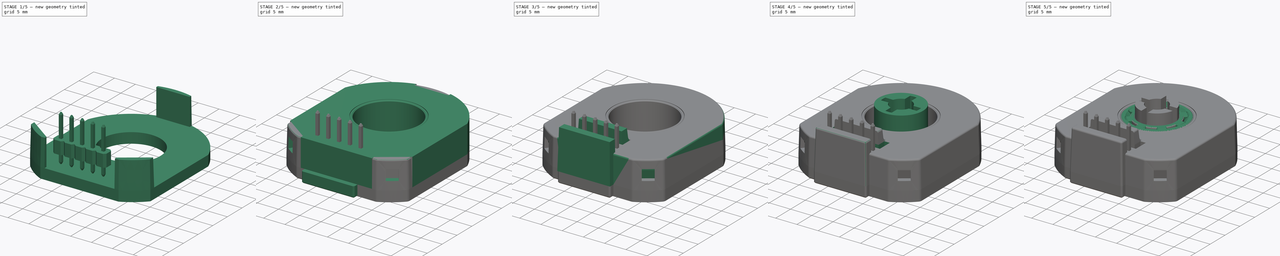
[diagram: build sequence overview — one tinted view per stage of 5, left to right]
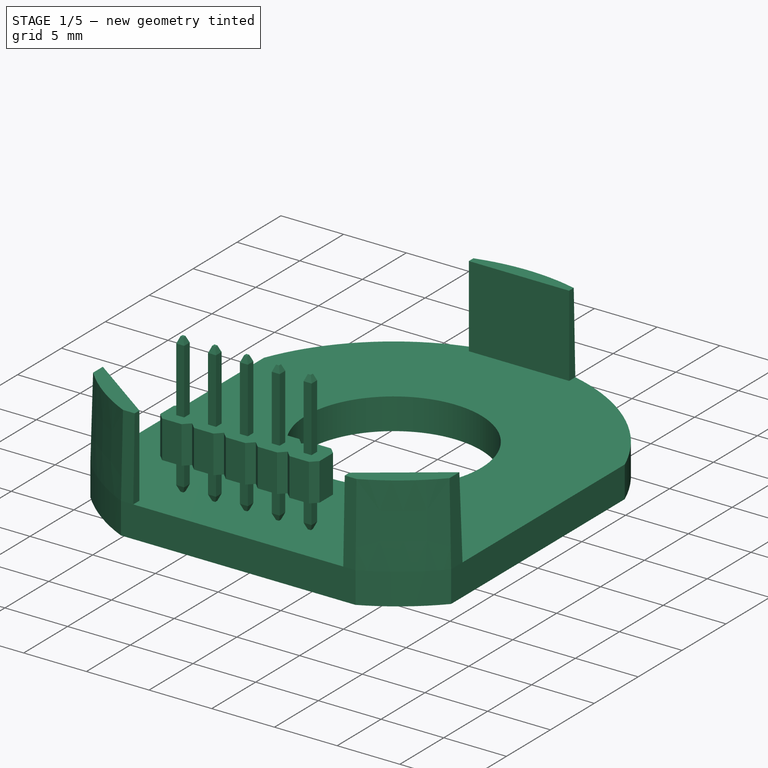
[diagram: stage 1 of 5 — iso view after this stage's code; geometry added in this stage tinted green]
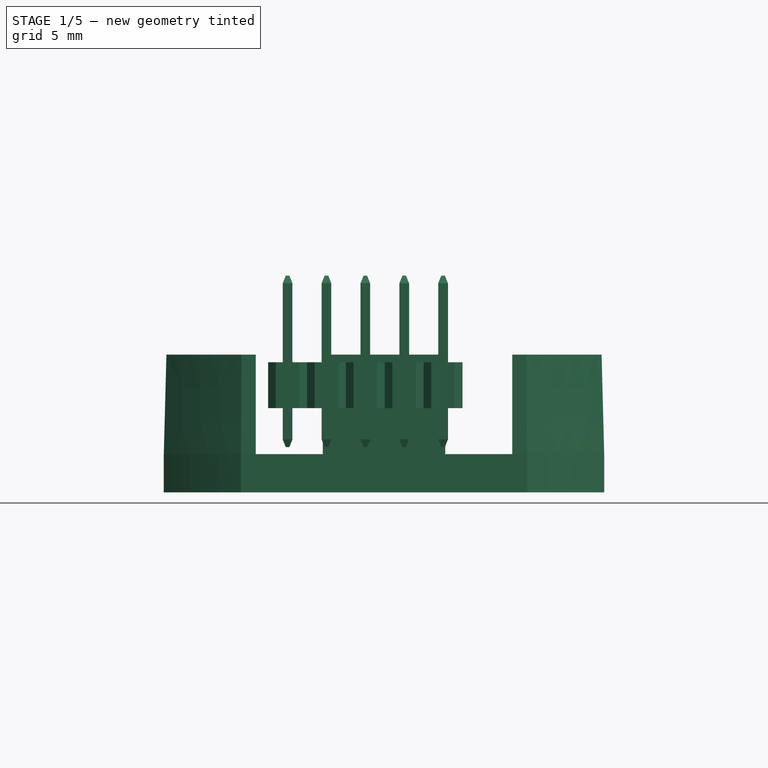
[diagram: stage 1 of 5 — front view after this stage's code; geometry added in this stage tinted green]
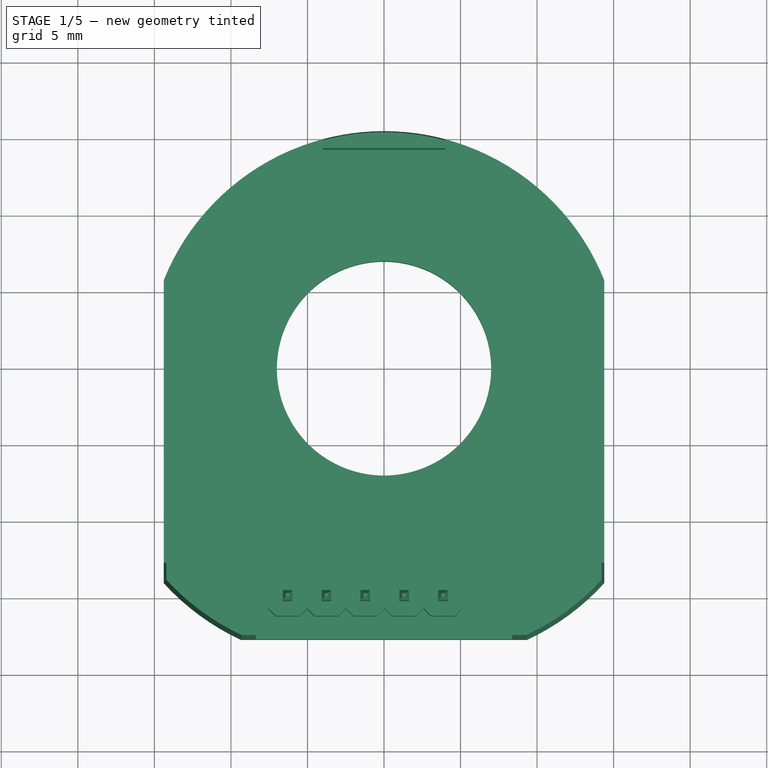
[diagram: stage 1 of 5 — top view after this stage's code; geometry added in this stage tinted green]
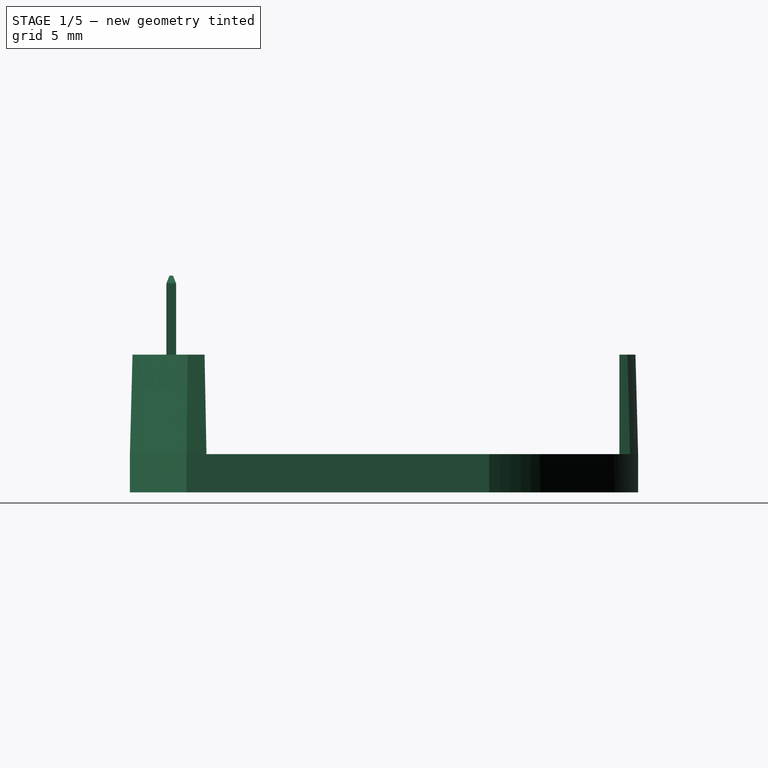
[diagram: stage 1 of 5 — right view after this stage's code; geometry added in this stage tinted green]
FCSTD DOCUMENT  (FreeCAD 0.20R29410 (Git))
Label: ATM103 Encoder
License: All rights reserved
LicenseURL: http://en.wikipedia.org/wiki/All_rights_reserved
objects: Sketcher::SketchObject×28, PartDesign::Pad×17, PartDesign::Pocket×11, PartDesign::Body×9, PartDesign::Fillet×6, PartDesign::Chamfer×5, PartDesign::Draft×4, Part::FeaturePython×4, Part::Chamfer×2, Part::Cut×1, Part::MultiFuse×1
note: 127 computed .brp shape members not serialized (recipe doc carries the construction recipe); baked Part::Feature solids carry a one-line shape summary decoded from their .brp

FEATURE [Sketcher::SketchObject] Sketch006
  FullyConstrained = true
  MapMode = 5
  Support = -> [XY_Plane001]
  sketch-geometry (7):
    g0: ArcOfCircle CenterX=0 CenterY=0 CenterZ=0 NormalX=0 NormalY=0 NormalZ=1 AngleXU=0 Radius=15.5 StartAngle=0.381615 EndAngle=2.75998
    g1: LineSegment StartX=-14.385 StartY=5.7725 StartZ=0 EndX=-14.385 EndY=-14 EndZ=0
    g2: LineSegment StartX=-9.35 StartY=-17.7 StartZ=0 EndX=9.35 EndY=-17.7 EndZ=0
    g3: LineSegment StartX=14.385 StartY=-14 StartZ=0 EndX=14.385 EndY=5.7725 EndZ=0
    g4: Circle CenterX=0 CenterY=0 CenterZ=0 NormalX=0 NormalY=0 NormalZ=1 AngleXU=0 Radius=7
    g5: ArcOfCircle CenterX=2.57529 CenterY=-3.20506 CenterZ=0 NormalX=0 NormalY=0 NormalZ=1 AngleXU=0 Radius=16 StartAngle=5.14961 EndAngle=5.54265
    g6: ArcOfCircle CenterX=-2.57529 CenterY=-3.20506 CenterZ=0 NormalX=0 NormalY=0 NormalZ=1 AngleXU=0 Radius=16 StartAngle=3.88213 EndAngle=4.27517
  constraints (21):
    c: Coincident(g0,g-1)
    c: Vertical(g1)
    c: Vertical(g3)
    c: Coincident(g0,g3)
    c: Horizontal(g1,g0)
    c: Radius(g0) = 15.5
    c: DistanceX(g1,g0) = 28.77
    c: Symmetric(g2,g2,g-2)
    c: Horizontal(g1,g3)
    c: Coincident(g4,g0)
    c: Coincident(g0,g1)
    c: DistanceX(g2,g2) = 18.7
    c: DistanceY(g2,g3) = 3.7
    c: Coincident(g5,g2)
    c: Coincident(g5,g3)
    c: Coincident(g6,g1)
    c: Coincident(g6,g2)
    c: Equal(g6,g5)
    c: Radius(g5) = 16
    c: Diameter(g4) = 14
    c: DistanceY(g2,g-1) = 17.7
FEATURE [PartDesign::Pad] Pad004
  Direction = (0,0,1)
  Length = 2.5
  Length2 = 10
  Profile = -> Sketch006
  ReferenceAxis = -> Sketch006 [N_Axis]
  Reversed = true
  Type = 0
FEATURE [Sketcher::SketchObject] Sketch007
  ExternalGeometry = -> [Pad004]
  FullyConstrained = true
  MapMode = 5
  Support = -> [Pad004]
  sketch-geometry (14):
    g0: LineSegment StartX=-14.385 StartY=-12.7 StartZ=0 EndX=-8.375 EndY=-17 EndZ=0
    g1: LineSegment StartX=-8.375 StartY=-17 StartZ=0 EndX=-8.375 EndY=-17.7 EndZ=0
    g2: LineSegment StartX=-8.375 StartY=-17.7 StartZ=0 EndX=-9.35 EndY=-17.7 EndZ=0
    g3: LineSegment StartX=-14.385 StartY=-12.7 StartZ=0 EndX=-14.385 EndY=-14 EndZ=0
    g4: LineSegment StartX=8.375 StartY=-17.7 StartZ=0 EndX=8.375 EndY=-17 EndZ=0
    g5: LineSegment StartX=8.375 StartY=-17 StartZ=0 EndX=14.385 EndY=-12.7 EndZ=0
    g6: LineSegment StartX=14.385 StartY=-12.7 StartZ=0 EndX=14.385 EndY=-14 EndZ=0
    g7: LineSegment StartX=8.375 StartY=-17.7 StartZ=0 EndX=9.35 EndY=-17.7 EndZ=0
    g8: ArcOfCircle CenterX=-2.57529 CenterY=-3.20506 CenterZ=0 NormalX=0 NormalY=0 NormalZ=1 AngleXU=0 Radius=16 StartAngle=3.88213 EndAngle=4.27517
    g9: ArcOfCircle CenterX=2.57529 CenterY=-3.20506 CenterZ=0 NormalX=0 NormalY=0 NormalZ=1 AngleXU=0 Radius=16 StartAngle=5.14961 EndAngle=5.54265
    g10: LineSegment StartX=-4 StartY=14.975 StartZ=0 EndX=-4 EndY=14.275 EndZ=0
    g11: LineSegment StartX=-4 StartY=14.275 StartZ=0 EndX=4 EndY=14.275 EndZ=0
    g12: LineSegment StartX=4 StartY=14.275 StartZ=0 EndX=4 EndY=14.975 EndZ=0
    g13: ArcOfCircle CenterX=2.2e-15 CenterY=-7.791e-13 CenterZ=0 NormalX=0 NormalY=0 NormalZ=1 AngleXU=0 Radius=15.5 StartAngle=1.30978 EndAngle=1.83181
  constraints (40):
    c: PointOnObject(g0,g-4)
    c: Coincident(g0,g1)
    c: Vertical(g1)
    c: Coincident(g1,g2)
    c: Coincident(g2,g-7)
    c: Horizontal(g2)
    c: Coincident(g0,g3)
    c: Coincident(g3,g-7)
    c: PointOnObject(g4,g-5)
    c: Vertical(g4)
    c: Coincident(g4,g5)
    c: PointOnObject(g5,g-6)
    c: Coincident(g5,g6)
    c: Coincident(g6,g-8)
    c: Coincident(g7,g4)
    c: Coincident(g7,g-8)
    c: Symmetric(g0,g4,g-2)
    c: DistanceY(g4,g4) = 0.7
    c: DistanceX(g0,g4) = 16.75
    c: DistanceY(g7,g5) = 5
    c: Horizontal(g0,g5)
    c: Coincident(g8,g3)
    c: Coincident(g8,g2)
    c: Coincident(g9,g7)
    c: Coincident(g9,g6)
    c: PointOnObject(g10,g-3)
    c: Vertical(g10)
    c: Coincident(g10,g11)
    c: Horizontal(g11)
    c: Coincident(g11,g12)
    c: PointOnObject(g12,g-3)
    c: Vertical(g12)
    c: Horizontal(g10,g12)
    c: DistanceX(g10,g12) = 8
    c: DistanceY(g12,g12) = 0.7
    c: Coincident(g13,g10)
    c: Coincident(g13,g12)
    c: Equal(g13,g-3)
    c: Equal(g-7,g8)
    c: Equal(g-8,g9)
FEATURE [PartDesign::Pad] Pad005
  BaseFeature = -> Pad004
  Direction = (0,0,1)
  Length = 6.5
  Length2 = 10
  Profile = -> Sketch007
  ReferenceAxis = -> Sketch007 [N_Axis]
  Type = 0
FEATURE [PartDesign::Draft] Draft001
  Angle = 1.5
  Base = -> Pad005 [Face5,Face23,Face10,Face26,Face25,Face21,Face8]
  BaseFeature = -> Pad005
  NeutralPlane = -> Pad005 [Face4]
  PullDirection = -> Pad005 [Edge34]
  SupportTransform = false
FEATURE [PartDesign::Body] Body001
  Group = -> [Sketch006,Pad004,Sketch007,Pad005,Draft001,Fillet001,Sketch008,Pocket002,Sketch009,Pocket003,Sketch010,Pocket004,Sketch011,Pad006,Fillet002,Sketch027,Pad014,Fillet005,Chamfer005]
  Origin = -> Origin001
  Tip = -> Chamfer005
FEATURE [Sketcher::SketchObject] Sketch028
  FullyConstrained = true
  MapMode = 5
  Support = -> [XY_Plane007]
  sketch-geometry (4):
    g0: LineSegment StartX=-0.3175 StartY=0.3175 StartZ=0 EndX=0.3175 EndY=0.3175 EndZ=0
    g1: LineSegment StartX=0.3175 StartY=0.3175 StartZ=0 EndX=0.3175 EndY=-0.3175 EndZ=0
    g2: LineSegment StartX=0.3175 StartY=-0.3175 StartZ=0 EndX=-0.3175 EndY=-0.3175 EndZ=0
    g3: LineSegment StartX=-0.3175 StartY=-0.3175 StartZ=0 EndX=-0.3175 EndY=0.3175 EndZ=0
  constraints (11):
    c: Coincident(g0,g1)
    c: Coincident(g1,g2)
    c: Coincident(g2,g3)
    c: Coincident(g3,g0)
    c: Horizontal(g0)
    c: Horizontal(g2)
    c: Vertical(g1)
    c: Vertical(g3)
    c: Symmetric(g1,g0,g-1)
    c: Equal(g0,g3)
    c: DistanceX(g0,g0) = 0.635
FEATURE [PartDesign::Pad] Pad015
  Direction = (1,1,1)
  Length = 11.2
  Length2 = 100
  Profile = -> Sketch028
  Type = 0
FEATURE [PartDesign::Chamfer] Chamfer006
  Angle = 45
  Base = -> Pad015 [Face5,Face6]
  BaseFeature = -> Pad015
  ChamferType = 1
  FlipDirection = false
  Size = 0.5
  Size2 = 0.2
  SupportTransform = false
  UseAllEdges = false
FEATURE [PartDesign::Body] Body007
  Group = -> [Sketch028,Pad015,Chamfer006]
  Origin = -> Origin007
  Placement = pos=(0,0,-2.54) rot=(0,0,1;0rad)
  Tip = -> Chamfer006
FEATURE [Part::FeaturePython] Array002  # Draft array (typed FeaturePython)
  AlwaysSyncPlacement = false
  Angle = 360
  ArrayType = 0
  Axis = (0,0,1)
  Base = -> Body007
  Center = (0,0,0)
  Count = 5
  ExpandArray = false
  Fuse = false
  IntervalAxis = (0,0,0)
  IntervalX = (2.54,0,0)
  IntervalY = (0,100,0)
  IntervalZ = (0,0,100)
  NumberCircles = 3
  NumberPolar = 5
  NumberX = 5
  NumberY = 1
  NumberZ = 1
  Placement = pos=(-6.3,-15,3) rot=(0,0,1;0rad)
  PlacementList = 5 placements: arithmetic series from (0,0,-2.54) step (2.54,0,0) to (10.16,0,-2.54)
  RadialDistance = 50
  ScaleList = (5) [(1,1,1),(1,1,1),(1,1,1),(1,1,1),(1,1,1)]
  Symmetry = 1
  TangentialDistance = 25
FEATURE [Sketcher::SketchObject] Sketch029
  FullyConstrained = true
  MapMode = 5
  Support = -> [XY_Plane008]
  sketch-geometry (4):
    g0: LineSegment StartX=-1.27 StartY=1.27 StartZ=0 EndX=1.27 EndY=1.27 EndZ=0
    g1: LineSegment StartX=1.27 StartY=1.27 StartZ=0 EndX=1.27 EndY=-1.27 EndZ=0
    g2: LineSegment StartX=1.27 StartY=-1.27 StartZ=0 EndX=-1.27 EndY=-1.27 EndZ=0
    g3: LineSegment StartX=-1.27 StartY=-1.27 StartZ=0 EndX=-1.27 EndY=1.27 EndZ=0
  constraints (11):
    c: Coincident(g0,g1)
    c: Coincident(g1,g2)
    c: Coincident(g2,g3)
    c: Coincident(g3,g0)
    c: Horizontal(g0)
    c: Horizontal(g2)
    c: Vertical(g1)
    c: Vertical(g3)
    c: Symmetric(g0,g1,g-1)
    c: Equal(g3,g0)
    c: DistanceX(g0,g0) = 2.54
FEATURE [PartDesign::Pad] Pad016
  Direction = (1,1,1)
  Length = 3
  Length2 = 100
  Profile = -> Sketch029
  Type = 0
FEATURE [PartDesign::Chamfer] Chamfer007
  Angle = 45
  Base = -> Pad016 [Edge1,Edge5,Edge2,Edge8]
  BaseFeature = -> Pad016
  ChamferType = 0
  FlipDirection = false
  Size = 0.5
  Size2 = 1
  SupportTransform = false
  UseAllEdges = false
FEATURE [Sketcher::SketchObject] Sketch030
  FullyConstrained = true
  MapMode = 5
  Placement = pos=(0,0,3) rot=(0,0,1;0rad)
  Support = -> [Chamfer007]
  sketch-geometry (4):
    g0: LineSegment StartX=-0.3175 StartY=0.3175 StartZ=0 EndX=0.3175 EndY=0.3175 EndZ=0
    g1: LineSegment StartX=0.3175 StartY=0.3175 StartZ=0 EndX=0.3175 EndY=-0.3175 EndZ=0
    g2: LineSegment StartX=0.3175 StartY=-0.3175 StartZ=0 EndX=-0.3175 EndY=-0.3175 EndZ=0
    g3: LineSegment StartX=-0.3175 StartY=-0.3175 StartZ=0 EndX=-0.3175 EndY=0.3175 EndZ=0
  constraints (11):
    c: Coincident(g0,g1)
    c: Coincident(g1,g2)
    c: Coincident(g2,g3)
    c: Coincident(g3,g0)
    c: Horizontal(g0)
    c: Horizontal(g2)
    c: Vertical(g1)
    c: Vertical(g3)
    c: Symmetric(g0,g1,g-1)
    c: Equal(g0,g3)
    c: DistanceX(g0,g0) = 0.635
FEATURE [PartDesign::Pocket] Pocket001
  BaseFeature = -> Chamfer007
  Direction = (1,1,1)
  Length = 5
  Length2 = 100
  Profile = -> Sketch030
  Type = 0
FEATURE [PartDesign::Body] Body008
  Group = -> [Sketch029,Pad016,Chamfer007,Sketch030,Pocket001]
  Origin = -> Origin008
  Tip = -> Pocket001
FEATURE [Part::FeaturePython] Array003  # Draft array (typed FeaturePython)
  AlwaysSyncPlacement = false
  Angle = 360
  ArrayType = 0
  Axis = (0,0,1)
  Base = -> Body008
  Center = (0,0,0)
  Count = 5
  ExpandArray = false
  Fuse = false
  IntervalAxis = (0,0,0)
  IntervalX = (2.54,0,0)
  IntervalY = (0,100,0)
  IntervalZ = (0,0,100)
  NumberCircles = 3
  NumberPolar = 5
  NumberX = 5
  NumberY = 1
  NumberZ = 1
  Placement = pos=(-6.3,-15,3) rot=(0,0,1;0rad)
  PlacementList = 5 placements: arithmetic series from (0,0,0) step (2.54,0,0) to (10.16,0,0)
  RadialDistance = 50
  ScaleList = (5) [(1,1,1),(1,1,1),(1,1,1),(1,1,1),(1,1,1)]
  Symmetry = 1
  TangentialDistance = 25
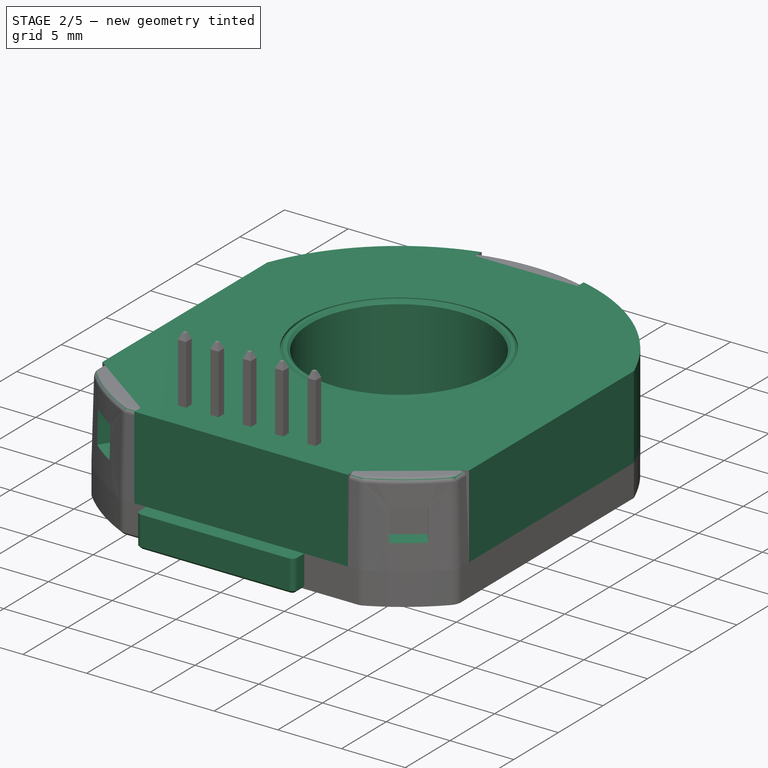
[diagram: stage 2 of 5 — iso view after this stage's code; geometry added in this stage tinted green]
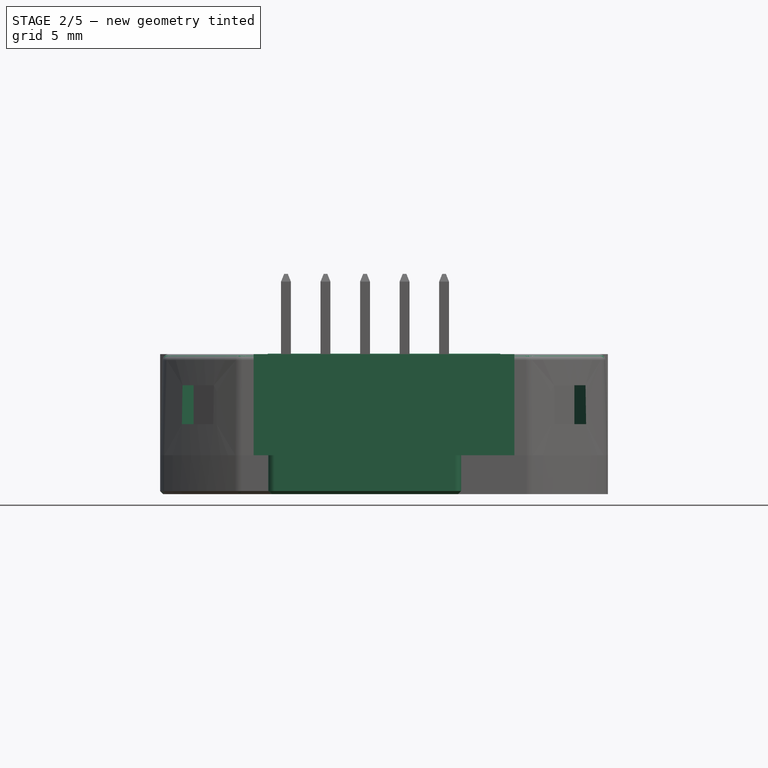
[diagram: stage 2 of 5 — front view after this stage's code; geometry added in this stage tinted green]
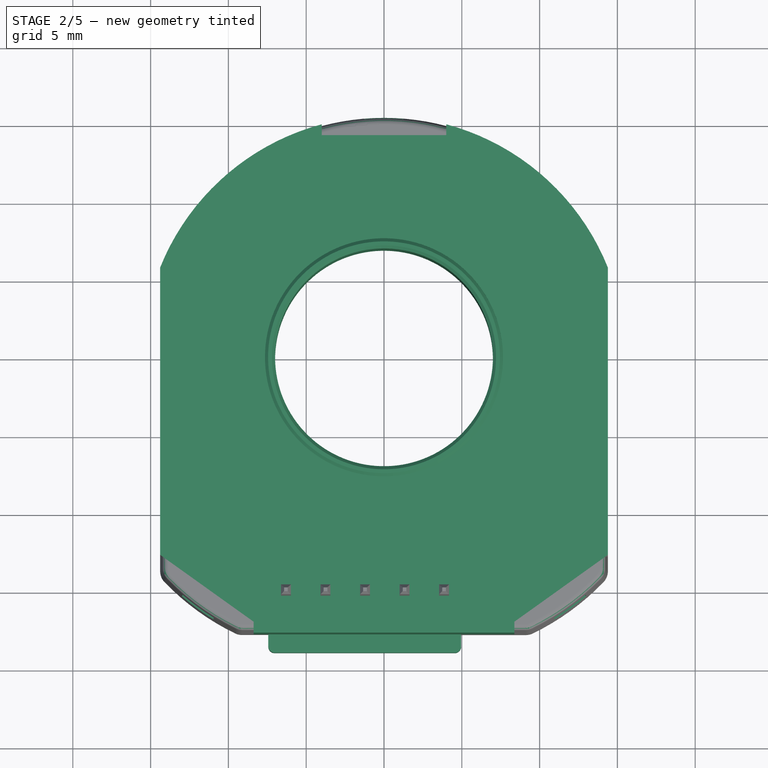
[diagram: stage 2 of 5 — top view after this stage's code; geometry added in this stage tinted green]
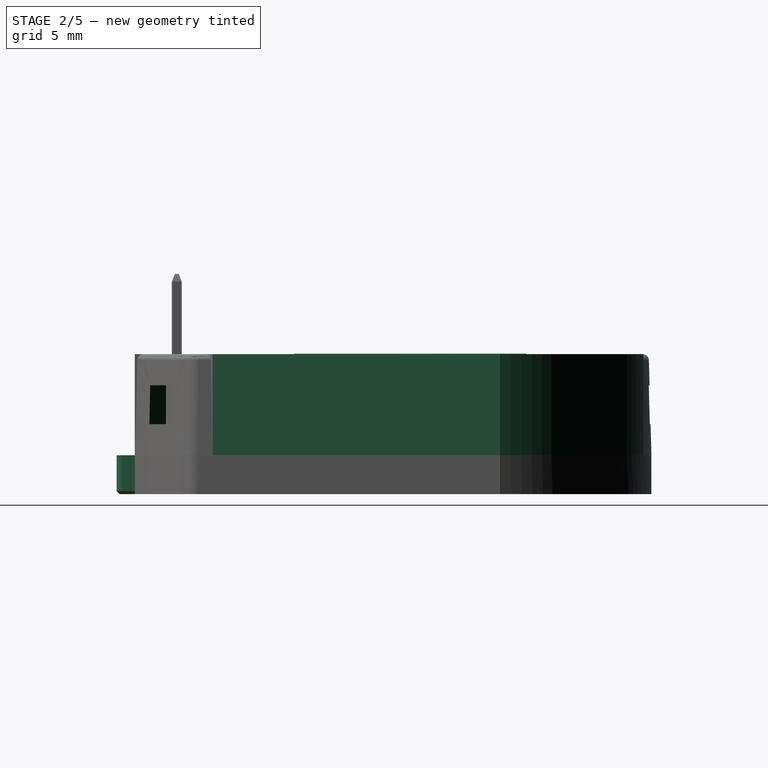
[diagram: stage 2 of 5 — right view after this stage's code; geometry added in this stage tinted green]
FEATURE [Sketcher::SketchObject] Sketch
  FullyConstrained = true
  MapMode = 5
  Support = -> [XY_Plane]
  sketch-geometry (13):
    g0: ArcOfCircle CenterX=0 CenterY=0 CenterZ=0 NormalX=0 NormalY=0 NormalZ=1 AngleXU=0 Radius=15.5 StartAngle=0.381615 EndAngle=1.30978
    g1: LineSegment StartX=-14.385 StartY=5.7725 StartZ=0 EndX=-14.385 EndY=-12.7 EndZ=0
    g2: LineSegment StartX=-8.375 StartY=-17.7 StartZ=0 EndX=8.375 EndY=-17.7 EndZ=0
    g3: LineSegment StartX=14.385 StartY=-12.7 StartZ=0 EndX=14.385 EndY=5.7725 EndZ=0
    g4: LineSegment StartX=8.375 StartY=-17.7 StartZ=0 EndX=8.375 EndY=-17 EndZ=0
    g5: LineSegment StartX=8.375 StartY=-17 StartZ=0 EndX=14.385 EndY=-12.7 EndZ=0
    g6: LineSegment StartX=-8.375 StartY=-17.7 StartZ=0 EndX=-8.375 EndY=-17 EndZ=0
    g7: LineSegment StartX=-8.375 StartY=-17 StartZ=0 EndX=-14.385 EndY=-12.7 EndZ=0
    g8: LineSegment StartX=-4 StartY=14.975 StartZ=0 EndX=-4 EndY=14.275 EndZ=0
    g9: LineSegment StartX=-4 StartY=14.275 StartZ=0 EndX=4 EndY=14.275 EndZ=0
    g10: LineSegment StartX=4 StartY=14.275 StartZ=0 EndX=4 EndY=14.975 EndZ=0
    g11: ArcOfCircle CenterX=0 CenterY=0 CenterZ=0 NormalX=0 NormalY=0 NormalZ=1 AngleXU=0 Radius=15.5 StartAngle=1.83181 EndAngle=2.75998
    g12: Circle CenterX=0 CenterY=0 CenterZ=0 NormalX=0 NormalY=0 NormalZ=1 AngleXU=0 Radius=7.65
  constraints (36):
    c: Coincident(g0,g-1)
    c: Vertical(g1)
    c: Vertical(g3)
    c: Coincident(g0,g3)
    c: Coincident(g11,g1)
    c: Horizontal(g11,g0)
    c: Radius(g0) = 15.5
    c: DistanceX(g11,g0) = 28.77
    c: Symmetric(g2,g2,g-2)
    c: Coincident(g4,g2)
    c: Vertical(g4)
    c: Coincident(g5,g4)
    c: Coincident(g5,g3)
    c: Coincident(g6,g2)
    c: Coincident(g7,g6)
    c: Coincident(g7,g1)
    c: Horizontal(g1,g3)
    c: Equal(g4,g6)
    c: Vertical(g6)
    c: DistanceY(g6,g6) = 0.7
    c: DistanceY(g2,g3) = 5
    c: DistanceX(g2,g2) = 16.75
    c: Coincident(g8,g9)
    c: Coincident(g9,g10)
    c: Vertical(g10)
    c: Equal(g0,g11)
    c: Coincident(g0,g10)
    c: Coincident(g11,g8)
    c: Coincident(g0,g11)
    c: Vertical(g8)
    c: Symmetric(g8,g9,g-2)
    c: DistanceX(g8,g0) = 8
    c: DistanceY(g10,g10) = 0.7
    c: Coincident(g12,g0)
    c: Diameter(g12) = 15.3
    c: DistanceY(g2,g-1) = 17.7
FEATURE [PartDesign::Pad] Pad
  Direction = (0,0,1)
  Length = 6.5
  Length2 = 10
  Profile = -> Sketch
  ReferenceAxis = -> Sketch [N_Axis]
  Type = 0
FEATURE [PartDesign::Fillet] Fillet001
  Base = -> Draft001 [Edge57,Edge31,Edge7,Edge34,Edge60,Edge36,Edge39,Edge11]
  BaseFeature = -> Draft001
  Radius = 1
  SupportTransform = false
  UseAllEdges = false
FEATURE [Sketcher::SketchObject] Sketch008
  ExternalGeometry = -> [Fillet001]
  FullyConstrained = true
  MapMode = 5
  Placement = pos=(10.8805,-15.2074,0) rot=(-0.221284,0.689577,0.689577;3.57714rad)
  Support = -> [Fillet001]
  sketch-geometry (4):
    g0: LineSegment StartX=-1.66926 StartY=4.5 StartZ=0 EndX=0.83074 EndY=4.5 EndZ=0
    g1: LineSegment StartX=0.83074 StartY=4.5 StartZ=0 EndX=0.83074 EndY=2 EndZ=0
    g2: LineSegment StartX=0.83074 StartY=2 StartZ=0 EndX=-1.66926 EndY=2 EndZ=0
    g3: LineSegment StartX=-1.66926 StartY=2 StartZ=0 EndX=-1.66926 EndY=4.5 EndZ=0
  constraints (12):
    c: Coincident(g0,g1)
    c: Coincident(g1,g2)
    c: Coincident(g2,g3)
    c: Coincident(g3,g0)
    c: Horizontal(g0)
    c: Horizontal(g2)
    c: Vertical(g1)
    c: Vertical(g3)
    c: Equal(g0,g3)
    c: DistanceX(g0,g0) = 2.5
    c: DistanceY(g0,g-3) = 2
    c: DistanceX(g0,g-3) = 2.25
FEATURE [PartDesign::Pocket] Pocket002
  BaseFeature = -> Fillet001
  Direction = (0.581878,-0.813276,2e-16)
  Length = 5
  Length2 = 5
  Profile = -> Sketch008
  ReferenceAxis = -> Sketch008 [N_Axis]
  Type = 0
FEATURE [Sketcher::SketchObject] Sketch009
  ExternalGeometry = -> [Pocket002]
  FullyConstrained = true
  MapMode = 5
  Placement = pos=(-10.8805,-15.2074,0) rot=(0.221284,0.689577,0.689577;2.70604rad)
  Support = -> [Pocket002]
  sketch-geometry (4):
    g0: LineSegment StartX=-0.83074 StartY=4.5 StartZ=0 EndX=1.66926 EndY=4.5 EndZ=0
    g1: LineSegment StartX=1.66926 StartY=4.5 StartZ=0 EndX=1.66926 EndY=2 EndZ=0
    g2: LineSegment StartX=1.66926 StartY=2 StartZ=0 EndX=-0.83074 EndY=2 EndZ=0
    g3: LineSegment StartX=-0.83074 StartY=2 StartZ=0 EndX=-0.83074 EndY=4.5 EndZ=0
  constraints (12):
    c: Coincident(g0,g1)
    c: Coincident(g1,g2)
    c: Coincident(g2,g3)
    c: Coincident(g3,g0)
    c: Horizontal(g0)
    c: Horizontal(g2)
    c: Vertical(g1)
    c: Vertical(g3)
    c: Equal(g0,g3)
    c: DistanceX(g0,g0) = 2.5
    c: DistanceY(g0,g-3) = 2
    c: DistanceX(g-3,g0) = 2.25
FEATURE [PartDesign::Pocket] Pocket003
  BaseFeature = -> Pocket002
  Direction = (-0.581878,-0.813276,-2e-16)
  Length = 5
  Length2 = 5
  Profile = -> Sketch009
  ReferenceAxis = -> Sketch009 [N_Axis]
  Type = 0
FEATURE [Sketcher::SketchObject] Sketch010
  ExternalGeometry = -> [Pocket003]
  FullyConstrained = true
  MapMode = 5
  Placement = pos=(0,14.275,0) rot=(1,0,0;1.5708rad)
  Support = -> [Pocket003]
  sketch-geometry (4):
    g0: LineSegment StartX=-1.25 StartY=4.5 StartZ=0 EndX=1.25 EndY=4.5 EndZ=0
    g1: LineSegment StartX=1.25 StartY=4.5 StartZ=0 EndX=1.25 EndY=2 EndZ=0
    g2: LineSegment StartX=1.25 StartY=2 StartZ=0 EndX=-1.25 EndY=2 EndZ=0
    g3: LineSegment StartX=-1.25 StartY=2 StartZ=0 EndX=-1.25 EndY=4.5 EndZ=0
  constraints (11):
    c: Coincident(g0,g1)
    c: Coincident(g1,g2)
    c: Coincident(g2,g3)
    c: Coincident(g3,g0)
    c: Horizontal(g2)
    c: Vertical(g1)
    c: Vertical(g3)
    c: Symmetric(g0,g0,g-2)
    c: Equal(g0,g3)
    c: DistanceX(g0,g0) = 2.5
    c: DistanceY(g0,g-3) = 2
FEATURE [PartDesign::Pocket] Pocket004
  BaseFeature = -> Pocket003
  Direction = (0,1,-2e-16)
  Length = 5
  Length2 = 5
  Profile = -> Sketch010
  ReferenceAxis = -> Sketch010 [N_Axis]
  Type = 0
FEATURE [Sketcher::SketchObject] Sketch011
  ExternalGeometry = -> [Pocket004]
  FullyConstrained = true
  MapMode = 5
  Support = -> [Pocket004]
  sketch-geometry (2):
    g0: Circle CenterX=0 CenterY=0 CenterZ=0 NormalX=0 NormalY=0 NormalZ=1 AngleXU=0 Radius=7.65
    g1: Circle CenterX=0 CenterY=0 CenterZ=0 NormalX=0 NormalY=0 NormalZ=1 AngleXU=0 Radius=7
  constraints (4):
    c: Coincident(g0,g-1)
    c: Coincident(g1,g0)
    c: Equal(g-3,g1)
    c: Diameter(g0) = 15.3
FEATURE [PartDesign::Pad] Pad006
  BaseFeature = -> Pocket004
  Direction = (0,0,1)
  Length = 6.53
  Length2 = 10
  Profile = -> Sketch011
  ReferenceAxis = -> Sketch011 [N_Axis]
  Refine = true
  Type = 0
FEATURE [PartDesign::Fillet] Fillet002
  Base = -> Pad006 [Edge84,Edge106,Edge43]
  BaseFeature = -> Pad006
  Radius = 0.4
  SupportTransform = false
  UseAllEdges = false
FEATURE [PartDesign::Body] Body
  Group = -> [Sketch,Pad,Draft,Fillet,Sketch003,Pad001,Sketch004,Pad002,Sketch005,Pad003,Chamfer,Sketch023,Pad012,Sketch024,Pad013,Draft002,Draft003,Fillet003,Fillet004,Sketch025,Pocket,Sketch026,Pocket010]
  Origin = -> Origin
  Tip = -> Pocket010
FEATURE [Sketcher::SketchObject] Sketch027
  ExternalGeometry = -> [Fillet002]
  FullyConstrained = true
  MapMode = 5
  Placement = pos=(0,-17.7,0) rot=(1,0,0;1.5708rad)
  Support = -> [Fillet002]
  sketch-geometry (4):
    g0: LineSegment StartX=-7.435 StartY=0 StartZ=0 EndX=4.955 EndY=0 EndZ=0
    g1: LineSegment StartX=4.955 StartY=0 StartZ=0 EndX=4.955 EndY=-2.5 EndZ=0
    g2: LineSegment StartX=4.955 StartY=-2.5 StartZ=0 EndX=-7.435 EndY=-2.5 EndZ=0
    g3: LineSegment StartX=-7.435 StartY=-2.5 StartZ=0 EndX=-7.435 EndY=0 EndZ=0
  constraints (12):
    c: Coincident(g0,g1)
    c: Coincident(g1,g2)
    c: Coincident(g2,g3)
    c: Coincident(g3,g0)
    c: Horizontal(g0)
    c: Horizontal(g2)
    c: Vertical(g1)
    c: Vertical(g3)
    c: PointOnObject(g0,g-1)
    c: PointOnObject(g1,g-3)
    c: DistanceX(g2,g2) = 12.39
    c: DistanceX(g-4,g2) = 6.95
FEATURE [PartDesign::Pad] Pad014
  BaseFeature = -> Fillet002
  Direction = (0,-1,2e-16)
  Length = 1.17
  Length2 = 10
  Profile = -> Sketch027
  ReferenceAxis = -> Sketch027 [N_Axis]
  Refine = true
  Type = 0
FEATURE [PartDesign::Fillet] Fillet005
  Base = -> Pad014 [Edge119,Edge122]
  BaseFeature = -> Pad014
  Radius = 0.4
  SupportTransform = false
  UseAllEdges = false
FEATURE [PartDesign::Chamfer] Chamfer005
  Angle = 45
  Base = -> Fillet005 [Edge17,Edge1,Edge64,Edge20,Edge104]
  BaseFeature = -> Fillet005
  ChamferType = 0
  FlipDirection = false
  Size = 0.2
  Size2 = 1
  SupportTransform = false
  UseAllEdges = false
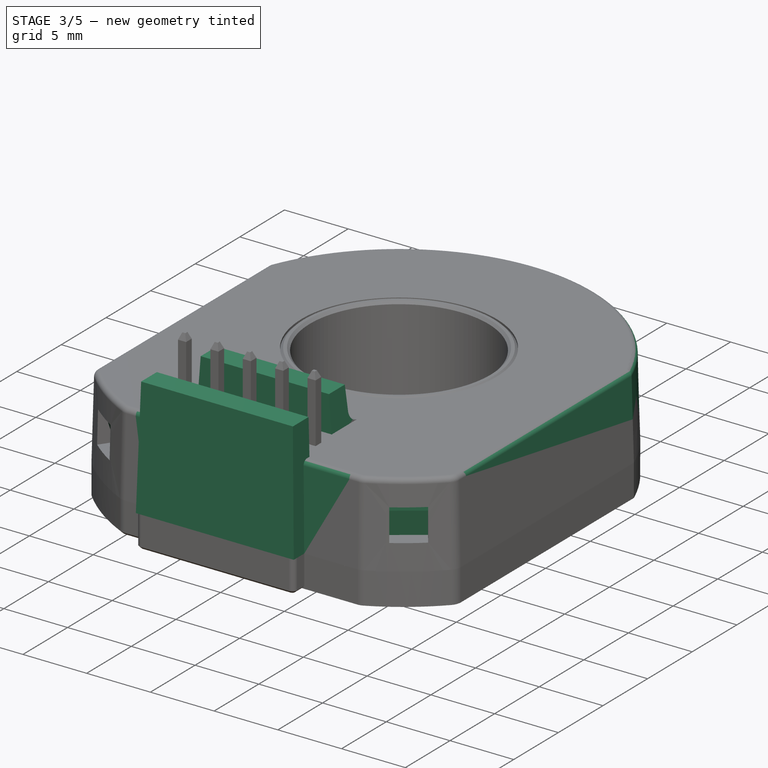
[diagram: stage 3 of 5 — iso view after this stage's code; geometry added in this stage tinted green]
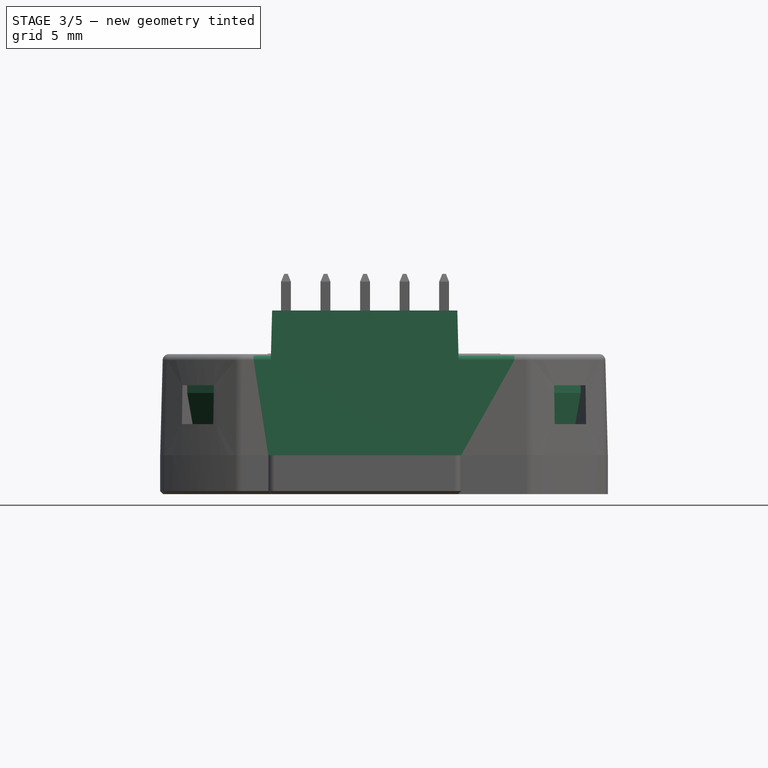
[diagram: stage 3 of 5 — front view after this stage's code; geometry added in this stage tinted green]
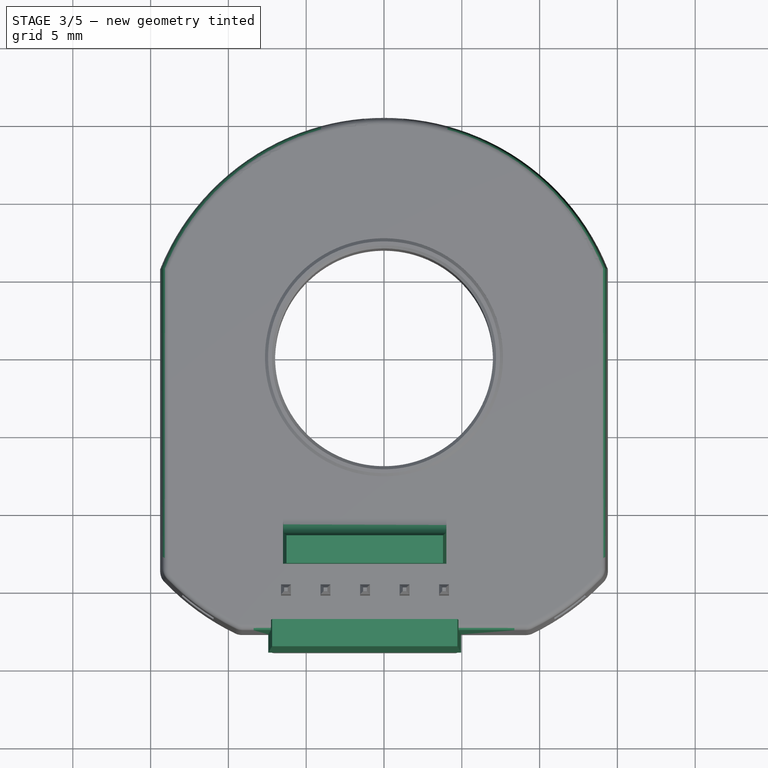
[diagram: stage 3 of 5 — top view after this stage's code; geometry added in this stage tinted green]
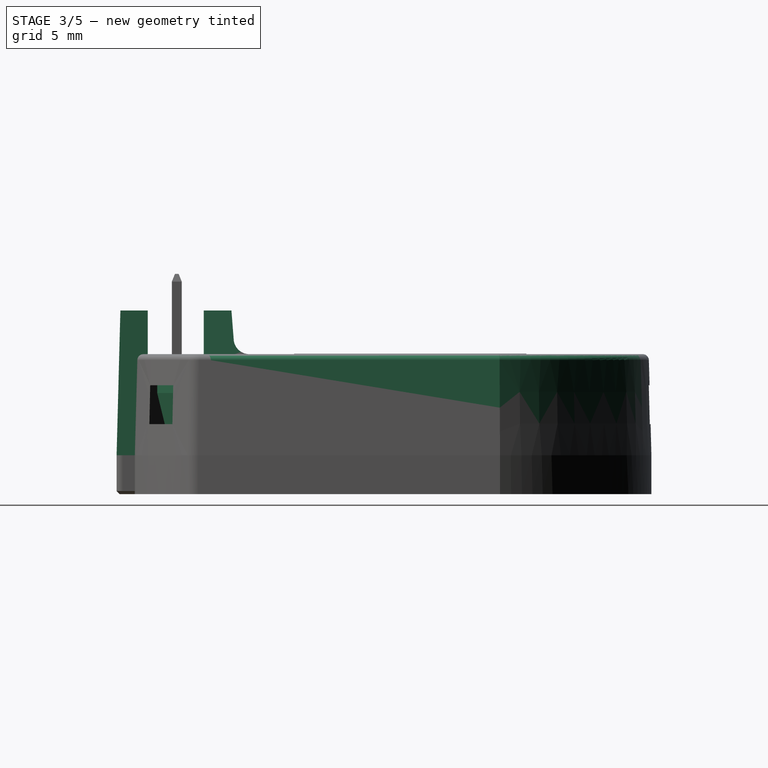
[diagram: stage 3 of 5 — right view after this stage's code; geometry added in this stage tinted green]
FEATURE [PartDesign::Draft] Draft
  Angle = 1.5
  Base = -> Pad [Face9,Face10,Face1,Face5,Face4]
  BaseFeature = -> Pad
  NeutralPlane = -> Pad [Face14]
  PullDirection = -> Pad [Edge8]
  SupportTransform = false
FEATURE [PartDesign::Fillet] Fillet
  Base = -> Draft [Edge31,Edge28,Edge16,Edge13,Edge4]
  BaseFeature = -> Draft
  Radius = 0.4
  SupportTransform = false
  UseAllEdges = false
FEATURE [Sketcher::SketchObject] Sketch003
  ExternalGeometry = -> [Fillet]
  FullyConstrained = true
  MapMode = 5
  Placement = pos=(10.8805,-15.2074,0) rot=(0.910615,0.292215,0.292215;1.66429rad)
  Support = -> [Fillet]
  sketch-geometry (4):
    g0: LineSegment StartX=-0.83074 StartY=4.5 StartZ=0 EndX=1.66926 EndY=4.5 EndZ=0
    g1: LineSegment StartX=1.66926 StartY=4.5 StartZ=0 EndX=1.66926 EndY=2 EndZ=0
    g2: LineSegment StartX=1.66926 StartY=2 StartZ=0 EndX=-0.83074 EndY=2 EndZ=0
    g3: LineSegment StartX=-0.83074 StartY=2 StartZ=0 EndX=-0.83074 EndY=4.5 EndZ=0
  constraints (12):
    c: Coincident(g0,g1)
    c: Coincident(g1,g2)
    c: Coincident(g2,g3)
    c: Coincident(g3,g0)
    c: Horizontal(g0)
    c: Horizontal(g2)
    c: Vertical(g1)
    c: Vertical(g3)
    c: DistanceX(g0,g0) = 2.5
    c: Equal(g0,g3)
    c: DistanceX(g-3,g0) = 2.25
    c: DistanceY(g0,g-3) = 2
FEATURE [PartDesign::Pad] Pad001
  BaseFeature = -> Fillet
  Direction = (0.581878,-0.813276,2e-16)
  Length = 0.7
  Length2 = 10
  Profile = -> Sketch003
  ReferenceAxis = -> Sketch003 [N_Axis]
  Type = 0
FEATURE [Sketcher::SketchObject] Sketch004
  ExternalGeometry = -> [Pad001]
  FullyConstrained = true
  MapMode = 5
  Placement = pos=(-10.8805,-15.2074,0) rot=(0.910615,-0.292215,-0.292215;1.66429rad)
  Support = -> [Pad001]
  sketch-geometry (4):
    g0: LineSegment StartX=-1.66926 StartY=4.5 StartZ=0 EndX=0.83074 EndY=4.5 EndZ=0
    g1: LineSegment StartX=0.83074 StartY=4.5 StartZ=0 EndX=0.83074 EndY=2 EndZ=0
    g2: LineSegment StartX=0.83074 StartY=2 StartZ=0 EndX=-1.66926 EndY=2 EndZ=0
    g3: LineSegment StartX=-1.66926 StartY=2 StartZ=0 EndX=-1.66926 EndY=4.5 EndZ=0
  constraints (12):
    c: Coincident(g0,g1)
    c: Coincident(g1,g2)
    c: Coincident(g2,g3)
    c: Coincident(g3,g0)
    c: Horizontal(g0)
    c: Horizontal(g2)
    c: Vertical(g1)
    c: Vertical(g3)
    c: Equal(g0,g3)
    c: DistanceX(g0,g0) = 2.5
    c: DistanceY(g0,g-3) = 2
    c: DistanceX(g0,g-3) = 2.25
FEATURE [PartDesign::Pad] Pad002
  BaseFeature = -> Pad001
  Direction = (-0.581878,-0.813276,2e-16)
  Length = 0.7
  Length2 = 10
  Profile = -> Sketch004
  ReferenceAxis = -> Sketch004 [N_Axis]
  Type = 0
FEATURE [Sketcher::SketchObject] Sketch005
  ExternalGeometry = -> [Pad002]
  FullyConstrained = true
  MapMode = 5
  Placement = pos=(0,14.275,0) rot=(0,0.707107,0.707107;3.14159rad)
  Support = -> [Pad002]
  sketch-geometry (4):
    g0: LineSegment StartX=-1.25 StartY=4.5 StartZ=0 EndX=1.25 EndY=4.5 EndZ=0
    g1: LineSegment StartX=1.25 StartY=4.5 StartZ=0 EndX=1.25 EndY=2 EndZ=0
    g2: LineSegment StartX=1.25 StartY=2 StartZ=0 EndX=-1.25 EndY=2 EndZ=0
    g3: LineSegment StartX=-1.25 StartY=2 StartZ=0 EndX=-1.25 EndY=4.5 EndZ=0
  constraints (11):
    c: Coincident(g0,g1)
    c: Coincident(g1,g2)
    c: Coincident(g2,g3)
    c: Coincident(g3,g0)
    c: Horizontal(g2)
    c: Vertical(g1)
    c: Vertical(g3)
    c: Equal(g0,g3)
    c: Symmetric(g0,g0,g-2)
    c: DistanceX(g0,g0) = 2.5
    c: DistanceY(g0,g-3) = 2
FEATURE [PartDesign::Pad] Pad003
  BaseFeature = -> Pad002
  Direction = (0,1,-2e-16)
  Length = 0.7
  Length2 = 10
  Profile = -> Sketch005
  ReferenceAxis = -> Sketch005 [N_Axis]
  Type = 0
FEATURE [PartDesign::Chamfer] Chamfer
  Angle = 45
  Base = -> Pad003 [Edge85,Edge69,Edge79]
  BaseFeature = -> Pad003
  ChamferType = 1
  FlipDirection = false
  Size = 0.6
  Size2 = 2
  SupportTransform = false
  UseAllEdges = false
FEATURE [PartDesign::Body] Body006
  Group = -> [Sketch016,Pad011,Sketch018,Pocket006,Sketch019,Pocket007,Sketch020,Sketch021,Pocket008,Pocket009]
  Origin = -> Origin006
  Placement = pos=(0,0,-2.5) rot=(0,0,1;0rad)
  Tip = -> Pocket009
FEATURE [Sketcher::SketchObject] Sketch023
  FullyConstrained = false
  MapMode = 5
  Support = -> [XY_Plane]
  sketch-geometry (4):
    g0: LineSegment StartX=-7.43475 StartY=-16.87 StartZ=0 EndX=4.95525 EndY=-16.87 EndZ=0
    g1: LineSegment StartX=4.95525 StartY=-16.87 StartZ=0 EndX=4.95525 EndY=-18.87 EndZ=0
    g2: LineSegment StartX=4.95525 StartY=-18.87 StartZ=0 EndX=-7.43475 EndY=-18.87 EndZ=0
    g3: LineSegment StartX=-7.43475 StartY=-18.87 StartZ=0 EndX=-7.43475 EndY=-16.87 EndZ=0
  constraints (11):
    c: Coincident(g0,g1)
    c: Coincident(g1,g2)
    c: Coincident(g2,g3)
    c: Coincident(g3,g0)
    c: Horizontal(g0)
    c: Horizontal(g2)
    c: Vertical(g1)
    c: Vertical(g3)
    c: DistanceX(g2,g2) = 12.39
    c: DistanceY(g1,g-1) = 18.87
    c: DistanceY(g1,g1) = 2
FEATURE [PartDesign::Pad] Pad012
  BaseFeature = -> Chamfer
  Direction = (0,0,1)
  Length = 9.3
  Length2 = 10
  Profile = -> Sketch023
  ReferenceAxis = -> Sketch023 [N_Axis]
  Refine = true
  Type = 0
FEATURE [Sketcher::SketchObject] Sketch024
  ExternalGeometry = -> [Pad012]
  FullyConstrained = true
  MapMode = 5
  Placement = pos=(0,0,6.5) rot=(0,0,1;0rad)
  Support = -> [Pad012]
  sketch-geometry (6):
    g0: LineSegment StartX=-6.48975 StartY=-13.27 StartZ=0 EndX=4.01025 EndY=-13.27 EndZ=0
    g1: LineSegment StartX=4.01025 StartY=-13.27 StartZ=0 EndX=4.01025 EndY=-11.27 EndZ=0
    g2: LineSegment StartX=4.01025 StartY=-11.27 StartZ=0 EndX=-6.48975 EndY=-11.27 EndZ=0
    g3: LineSegment StartX=-6.48975 StartY=-11.27 StartZ=0 EndX=-6.48975 EndY=-13.27 EndZ=0
    g4: LineSegment StartX=-7.43475 StartY=-16.87 StartZ=0 EndX=-6.48975 EndY=-13.27 EndZ=0
    g5: LineSegment StartX=4.95525 StartY=-16.87 StartZ=0 EndX=4.01025 EndY=-13.27 EndZ=0
  constraints (16):
    c: Coincident(g0,g1)
    c: Coincident(g1,g2)
    c: Coincident(g2,g3)
    c: Coincident(g3,g0)
    c: Horizontal(g0)
    c: Horizontal(g2)
    c: Vertical(g1)
    c: Vertical(g3)
    c: Coincident(g4,g-3)
    c: Coincident(g4,g0)
    c: Coincident(g5,g-3)
    c: Coincident(g5,g0)
    c: Equal(g5,g4)
    c: DistanceY(g1,g1) = 2
    c: DistanceY(g5,g0) = 3.6
    c: DistanceX(g2,g2) = 10.5
FEATURE [PartDesign::Pad] Pad013
  BaseFeature = -> Pad012
  Direction = (0,0,1)
  Length = 2.8
  Length2 = 10
  Profile = -> Sketch024
  ReferenceAxis = -> Sketch024 [N_Axis]
  Type = 0
FEATURE [PartDesign::Draft] Draft002
  Angle = 1.5
  Base = -> Pad013 [Face24,Face23,Face25]
  BaseFeature = -> Pad013
  NeutralPlane = -> Pad013 [Face10]
  PullDirection = -> Pad013 [Edge88]
  SupportTransform = false
FEATURE [PartDesign::Draft] Draft003
  Angle = 4.5
  Base = -> Draft002 [Face35,Face34,Face36]
  BaseFeature = -> Draft002
  NeutralPlane = -> Draft002 [Face11]
  PullDirection = -> Draft002 [Edge106]
  SupportTransform = false
FEATURE [PartDesign::Fillet] Fillet003
  Base = -> Draft003 [Edge57]
  BaseFeature = -> Draft003
  Radius = 1
  SupportTransform = false
  UseAllEdges = false
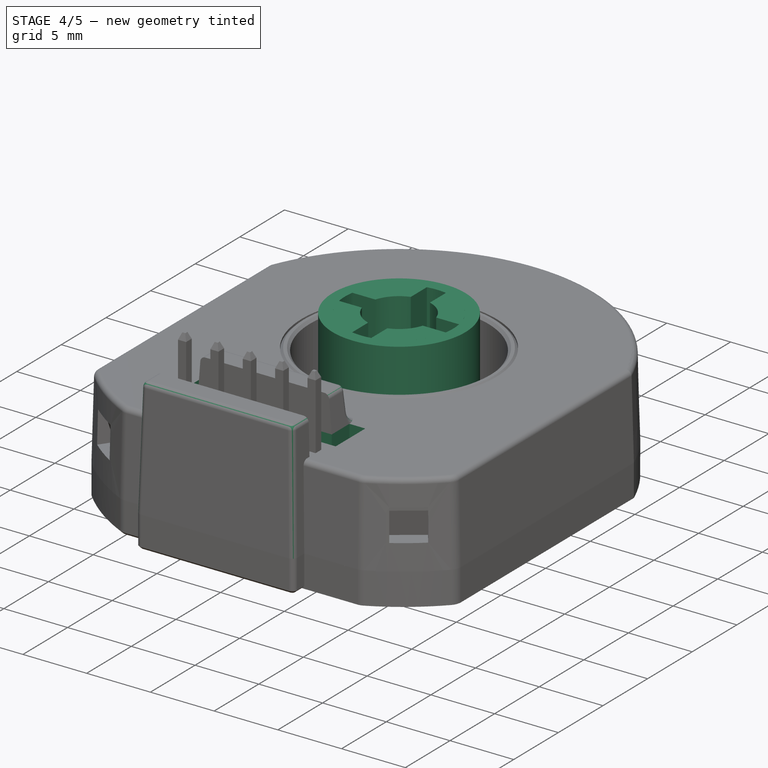
[diagram: stage 4 of 5 — iso view after this stage's code; geometry added in this stage tinted green]
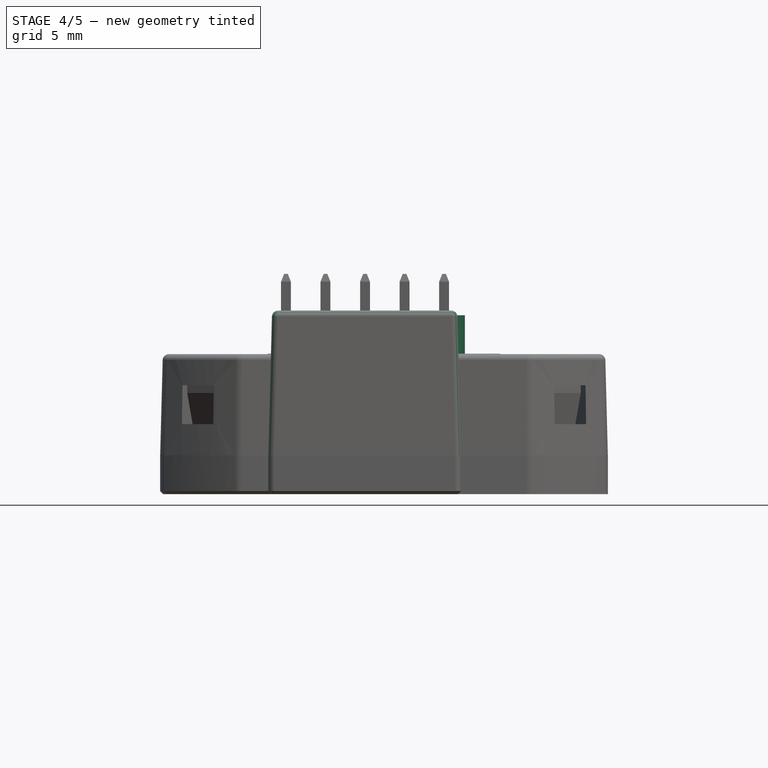
[diagram: stage 4 of 5 — front view after this stage's code; geometry added in this stage tinted green]
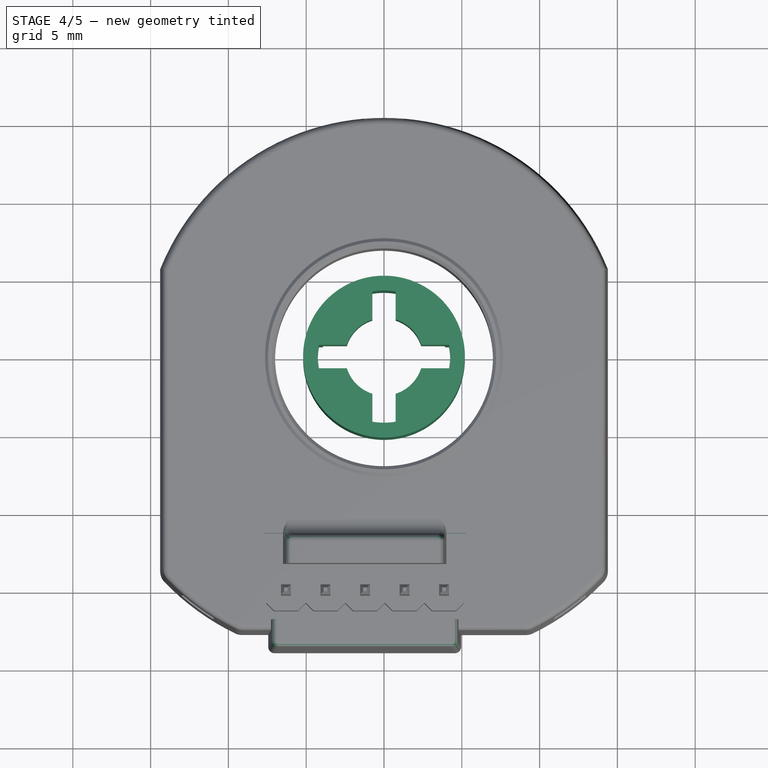
[diagram: stage 4 of 5 — top view after this stage's code; geometry added in this stage tinted green]
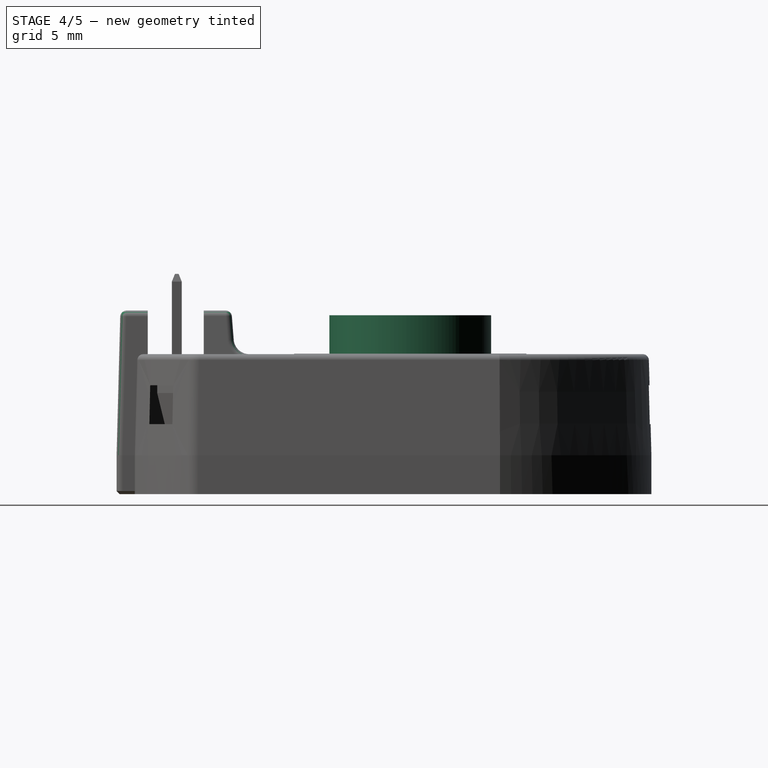
[diagram: stage 4 of 5 — right view after this stage's code; geometry added in this stage tinted green]
FEATURE [Sketcher::SketchObject] Sketch014
  FullyConstrained = true
  MapMode = 5
  Support = -> [XY_Plane004]
  sketch-geometry (2):
    g0: Circle CenterX=0 CenterY=0 CenterZ=0 NormalX=0 NormalY=0 NormalZ=1 AngleXU=0 Radius=5.2
    g1: Circle CenterX=0 CenterY=0 CenterZ=0 NormalX=0 NormalY=0 NormalZ=1 AngleXU=0 Radius=4.25
  constraints (4):
    c: Coincident(g0,g-1)
    c: Diameter(g0) = 10.4
    c: Coincident(g1,g0)
    c: Diameter(g1) = 8.5
FEATURE [PartDesign::Pad] Pad009
  Direction = (0,0,1)
  Length = 9
  Length2 = 10
  Profile = -> Sketch014
  ReferenceAxis = -> Sketch014 [N_Axis]
  Type = 0
FEATURE [Sketcher::SketchObject] Sketch016
  FullyConstrained = true
  MapMode = 5
  Support = -> [XY_Plane006]
  sketch-geometry (2):
    g0: Circle CenterX=0 CenterY=0 CenterZ=0 NormalX=0 NormalY=0 NormalZ=1 AngleXU=0 Radius=4.5
    g1: Circle CenterX=0 CenterY=0 CenterZ=0 NormalX=0 NormalY=0 NormalZ=1 AngleXU=0 Radius=2.5
  constraints (4):
    c: Coincident(g0,g-1)
    c: Diameter(g0) = 9
    c: Coincident(g1,g0)
    c: Diameter(g1) = 5
FEATURE [PartDesign::Pad] Pad011
  Direction = (0,0,1)
  Length = 9
  Length2 = 10
  Profile = -> Sketch016
  ReferenceAxis = -> Sketch016 [N_Axis]
  Type = 0
FEATURE [Sketcher::SketchObject] Sketch017
  FullyConstrained = true
  MapMode = 5
  Placement = pos=(0,0,0) rot=(1,0,0;3.14159rad)
  Support = -> [Pad009]
  sketch-geometry (1):
    g0: Circle CenterX=0 CenterY=0 CenterZ=0 NormalX=0 NormalY=0 NormalZ=1 AngleXU=0 Radius=4.5
  constraints (2):
    c: Coincident(g0,g-1)
    c: Diameter(g0) = 9
FEATURE [PartDesign::Pocket] Pocket005
  BaseFeature = -> Pad009
  Direction = (0,0,1)
  Length = 2
  Length2 = 5
  Profile = -> Sketch017
  ReferenceAxis = -> Sketch017 [N_Axis]
  Type = 0
FEATURE [Sketcher::SketchObject] Sketch018
  FullyConstrained = false
  MapMode = 5
  Placement = pos=(0,0,9) rot=(0,0,1;0rad)
  Support = -> [Pad011]
  sketch-geometry (2):
    g0: Circle CenterX=0 CenterY=0 CenterZ=0 NormalX=0 NormalY=0 NormalZ=1 AngleXU=0 Radius=4.25
    g1: Circle CenterX=0 CenterY=0 CenterZ=0 NormalX=0 NormalY=0 NormalZ=1 AngleXU=0 Radius=5.46545
  constraints (3):
    c: Coincident(g0,g-1)
    c: Coincident(g1,g0)
    c: Diameter(g0) = 8.5
FEATURE [PartDesign::Pocket] Pocket006
  BaseFeature = -> Pad011
  Direction = (0,0,-1)
  Length = 7
  Length2 = 5
  Profile = -> Sketch018
  ReferenceAxis = -> Sketch018 [N_Axis]
  Type = 0
FEATURE [Sketcher::SketchObject] Sketch019
  FullyConstrained = true
  MapMode = 5
  Placement = pos=(0,0,0) rot=(1,0,0;3.14159rad)
  Support = -> [Pocket006]
  sketch-geometry (1):
    g0: Circle CenterX=0 CenterY=0 CenterZ=0 NormalX=0 NormalY=0 NormalZ=1 AngleXU=0 Radius=4
  constraints (2):
    c: Coincident(g0,g-1)
    c: Diameter(g0) = 8
FEATURE [PartDesign::Pocket] Pocket007
  BaseFeature = -> Pocket006
  Direction = (0,0,1)
  Length = 4
  Length2 = 5
  Profile = -> Sketch019
  ReferenceAxis = -> Sketch019 [N_Axis]
  Type = 0
FEATURE [Sketcher::SketchObject] Sketch020
  FullyConstrained = true
  MapMode = 5
  Placement = pos=(0,0,0) rot=(1,0,0;3.14159rad)
  Support = -> [Pocket007]
  sketch-geometry (12):
    g0: ArcOfCircle CenterX=0 CenterY=0 CenterZ=0 NormalX=0 NormalY=0 NormalZ=1 AngleXU=0 Radius=4.25 StartAngle=1.3934 EndAngle=1.7482
    g1: LineSegment StartX=0.75 StartY=4.1833 StartZ=0 EndX=0.75 EndY=0.75 EndZ=0
    g2: LineSegment StartX=-0.75 StartY=-4.1833 StartZ=0 EndX=-0.75 EndY=-0.75 EndZ=0
    g3: LineSegment StartX=-4.1833 StartY=0.75 StartZ=0 EndX=-0.75 EndY=0.75 EndZ=0
    g4: LineSegment StartX=4.1833 StartY=-0.75 StartZ=0 EndX=0.75 EndY=-0.75 EndZ=0
    g5: LineSegment StartX=0.75 StartY=0.75 StartZ=0 EndX=4.1833 EndY=0.75 EndZ=0
    g6: LineSegment StartX=-0.75 StartY=-0.75 StartZ=0 EndX=-4.1833 EndY=-0.75 EndZ=0
    g7: LineSegment StartX=-0.75 StartY=0.75 StartZ=0 EndX=-0.75 EndY=4.1833 EndZ=0
    g8: LineSegment StartX=0.75 StartY=-0.75 StartZ=0 EndX=0.75 EndY=-4.1833 EndZ=0
    g9: ArcOfCircle CenterX=0 CenterY=0 CenterZ=0 NormalX=0 NormalY=0 NormalZ=1 AngleXU=0 Radius=4.25 StartAngle=2.96419 EndAngle=3.31899
    g10: ArcOfCircle CenterX=0 CenterY=0 CenterZ=0 NormalX=0 NormalY=0 NormalZ=1 AngleXU=0 Radius=4.25 StartAngle=4.53499 EndAngle=4.88979
    g11: ArcOfCircle CenterX=0 CenterY=0 CenterZ=0 NormalX=0 NormalY=0 NormalZ=1 AngleXU=0 Radius=4.25 StartAngle=6.10579 EndAngle=6.46058
  constraints (38):
    c: Coincident(g0,g-1)
    c: Vertical(g1)
    c: Vertical(g2)
    c: Horizontal(g3)
    c: Horizontal(g4)
    c: Coincident(g2,g6)
    c: Coincident(g7,g3)
    c: Coincident(g1,g5)
    c: Coincident(g8,g4)
    c: PointOnObject(g6,g0)
    c: PointOnObject(g2,g0)
    c: PointOnObject(g8,g0)
    c: PointOnObject(g4,g0)
    c: Coincident(g11,g5)
    c: Coincident(g0,g1)
    c: Equal(g0,g9)
    c: Coincident(g0,g7)
    c: Coincident(g9,g3)
    c: Coincident(g0,g9)
    c: Equal(g9,g10)
    c: PointOnObject(g9,g6)
    c: PointOnObject(g10,g2)
    c: Coincident(g9,g10)
    c: Equal(g10,g11)
    c: PointOnObject(g10,g8)
    c: PointOnObject(g11,g4)
    c: Coincident(g10,g11)
    c: Horizontal(g6)
    c: Horizontal(g5)
    c: Vertical(g7)
    c: Vertical(g8)
    c: Symmetric(g3,g4,g0)
    c: Symmetric(g2,g1,g0)
    c: Equal(g5,g1)
    c: Equal(g8,g2)
    c: Diameter(g11) = 8.5
    c: DistanceY(g4,g5) = 1.5
    c: Equal(g3,g6)
FEATURE [PartDesign::Pocket] Pocket008
  BaseFeature = -> Pocket007
  Direction = (0,0,1)
  Length = 5
  Length2 = 5
  Profile = -> Sketch020
  ReferenceAxis = -> Sketch020 [N_Axis]
  Type = 1
FEATURE [Sketcher::SketchObject] Sketch021
  AttachmentOffset = pos=(0,0,0) rot=(0,0,1;0.785398rad)
  FullyConstrained = true
  MapMode = 5
  Placement = pos=(0,0,0) rot=(0.92388,-0.382683,0;3.14159rad)
  Support = -> [Pocket008]
  sketch-geometry (12):
    g0: ArcOfCircle CenterX=0 CenterY=0 CenterZ=0 NormalX=0 NormalY=0 NormalZ=1 AngleXU=0 Radius=4.25 StartAngle=1.3934 EndAngle=1.7482
    g1: LineSegment StartX=0.75 StartY=4.1833 StartZ=0 EndX=0.75 EndY=0.75 EndZ=0
    g2: LineSegment StartX=-0.75 StartY=-4.1833 StartZ=0 EndX=-0.75 EndY=-0.75 EndZ=0
    g3: LineSegment StartX=-4.1833 StartY=0.75 StartZ=0 EndX=-0.75 EndY=0.75 EndZ=0
    g4: LineSegment StartX=4.1833 StartY=-0.75 StartZ=0 EndX=0.75 EndY=-0.75 EndZ=0
    g5: LineSegment StartX=0.75 StartY=0.75 StartZ=0 EndX=4.1833 EndY=0.75 EndZ=0
    g6: LineSegment StartX=-0.75 StartY=-0.75 StartZ=0 EndX=-4.1833 EndY=-0.75 EndZ=0
    g7: LineSegment StartX=-0.75 StartY=0.75 StartZ=0 EndX=-0.75 EndY=4.1833 EndZ=0
    g8: LineSegment StartX=0.75 StartY=-0.75 StartZ=0 EndX=0.75 EndY=-4.1833 EndZ=0
    g9: ArcOfCircle CenterX=0 CenterY=0 CenterZ=0 NormalX=0 NormalY=0 NormalZ=1 AngleXU=0 Radius=4.25 StartAngle=2.96419 EndAngle=3.31899
    g10: ArcOfCircle CenterX=0 CenterY=0 CenterZ=0 NormalX=0 NormalY=0 NormalZ=1 AngleXU=0 Radius=4.25 StartAngle=4.53499 EndAngle=4.88979
    g11: ArcOfCircle CenterX=0 CenterY=0 CenterZ=0 NormalX=0 NormalY=0 NormalZ=1 AngleXU=0 Radius=4.25 StartAngle=6.10579 EndAngle=6.46058
  constraints (38):
    c: Coincident(g0,g-1)
    c: Vertical(g1)
    c: Vertical(g2)
    c: Horizontal(g3)
    c: Horizontal(g4)
    c: Coincident(g2,g6)
    c: Coincident(g7,g3)
    c: Coincident(g1,g5)
    c: Coincident(g8,g4)
    c: PointOnObject(g6,g0)
    c: PointOnObject(g2,g0)
    c: PointOnObject(g8,g0)
    c: PointOnObject(g4,g0)
    c: Coincident(g11,g5)
    c: Coincident(g0,g1)
    c: Equal(g0,g9)
    c: Coincident(g0,g7)
    c: Coincident(g9,g3)
    c: Coincident(g0,g9)
    c: Equal(g9,g10)
    c: PointOnObject(g9,g6)
    c: PointOnObject(g10,g2)
    c: Coincident(g9,g10)
    c: Equal(g10,g11)
    c: PointOnObject(g10,g8)
    c: PointOnObject(g11,g4)
    c: Coincident(g10,g11)
    c: Horizontal(g6)
    c: Horizontal(g5)
    c: Vertical(g7)
    c: Vertical(g8)
    c: Symmetric(g3,g4,g0)
    c: Symmetric(g2,g1,g0)
    c: Equal(g5,g1)
    c: Equal(g8,g2)
    c: Diameter(g11) = 8.5
    c: DistanceY(g4,g5) = 1.5
    c: Equal(g3,g6)
FEATURE [PartDesign::Pocket] Pocket009
  BaseFeature = -> Pocket008
  Direction = (0,0,1)
  Length = 4
  Length2 = 5
  Profile = -> Sketch021
  ReferenceAxis = -> Sketch021 [N_Axis]
  Refine = true
  Type = 0
FEATURE [PartDesign::Fillet] Fillet004
  Base = -> Fillet003 [Edge26,Edge24,Edge92,Edge32,Edge33,Edge40,Edge39,Edge100,Edge57,Edge58]
  BaseFeature = -> Fillet003
  Radius = 0.4
  SupportTransform = false
  UseAllEdges = false
FEATURE [Sketcher::SketchObject] Sketch025
  ExternalGeometry = -> [Fillet004]
  FullyConstrained = true
  MapMode = 5
  Placement = pos=(0,0,6.5) rot=(0,0,1;0rad)
  Support = -> [Fillet004]
  sketch-geometry (8):
    g0: LineSegment StartX=-6.48975 StartY=-13.27 StartZ=0 EndX=-6.48975 EndY=-11.2922 EndZ=0
    g1: LineSegment StartX=-6.48975 StartY=-11.2922 StartZ=0 EndX=-7.73975 EndY=-11.2922 EndZ=0
    g2: LineSegment StartX=-7.73975 StartY=-11.2922 StartZ=0 EndX=-7.73975 EndY=-16.87 EndZ=0
    g3: LineSegment StartX=-7.73975 StartY=-16.87 StartZ=0 EndX=5.26025 EndY=-16.87 EndZ=0
    g4: LineSegment StartX=5.26025 StartY=-16.87 StartZ=0 EndX=5.26025 EndY=-11.2922 EndZ=0
    g5: LineSegment StartX=5.26025 StartY=-11.2922 StartZ=0 EndX=4.01025 EndY=-11.2922 EndZ=0
    g6: LineSegment StartX=4.01025 StartY=-11.2922 StartZ=0 EndX=4.01025 EndY=-13.27 EndZ=0
    g7: LineSegment StartX=4.01025 StartY=-13.27 StartZ=0 EndX=-6.48975 EndY=-13.27 EndZ=0
  constraints (20):
    c: Coincident(g-5,g0)
    c: Coincident(g0,g-5)
    c: Coincident(g0,g1)
    c: Horizontal(g1)
    c: Coincident(g1,g2)
    c: Vertical(g2)
    c: Coincident(g2,g3)
    c: Horizontal(g3)
    c: Coincident(g3,g4)
    c: Vertical(g4)
    c: Coincident(g4,g5)
    c: Coincident(g5,g-6)
    c: Coincident(g5,g6)
    c: Coincident(g6,g-6)
    c: Coincident(g6,g7)
    c: Coincident(g7,g0)
    c: Horizontal(g5)
    c: Equal(g5,g1)
    c: DistanceX(g1,g4) = 13
    c: PointOnObject(g-4,g3)
FEATURE [PartDesign::Pocket] Pocket
  BaseFeature = -> Fillet004
  Direction = (0,0,-1)
  Length = 5
  Length2 = 5
  Profile = -> Sketch025
  ReferenceAxis = -> Sketch025 [N_Axis]
  Type = 1
FEATURE [Sketcher::SketchObject] Sketch026
  ExternalGeometry = -> [Pocket]
  FullyConstrained = false
  MapMode = 5
  Placement = pos=(0,0,0) rot=(1,0,0;3.14159rad)
  Support = -> [Pocket]
  sketch-geometry (4):
    g0: LineSegment StartX=-7.73975 StartY=13.9827 StartZ=0 EndX=5.26025 EndY=13.9827 EndZ=0
    g1: LineSegment StartX=5.26025 StartY=13.9827 StartZ=0 EndX=5.26025 EndY=9.2066 EndZ=0
    g2: LineSegment StartX=5.26025 StartY=9.2066 StartZ=0 EndX=-7.73975 EndY=9.2066 EndZ=0
    g3: LineSegment StartX=-7.73975 StartY=9.2066 StartZ=0 EndX=-7.73975 EndY=13.9827 EndZ=0
  constraints (10):
    c: Coincident(g0,g1)
    c: Coincident(g1,g2)
    c: Coincident(g2,g3)
    c: Coincident(g3,g0)
    c: Horizontal(g0)
    c: Horizontal(g2)
    c: Vertical(g1)
    c: Vertical(g3)
    c: PointOnObject(g0,g-3)
    c: PointOnObject(g-4,g1)
FEATURE [PartDesign::Pocket] Pocket010
  BaseFeature = -> Pocket
  Direction = (0,0,1)
  Length = 5.5
  Length2 = 5
  Profile = -> Sketch026
  ReferenceAxis = -> Sketch026 [N_Axis]
  Refine = true
  Type = 0
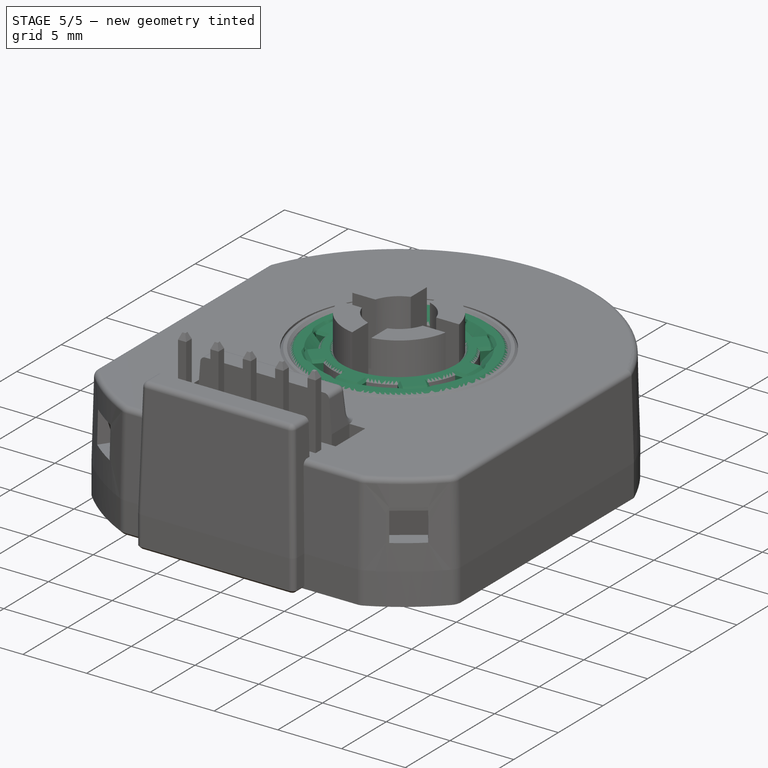
[diagram: stage 5 of 5 — iso view after this stage's code; geometry added in this stage tinted green]
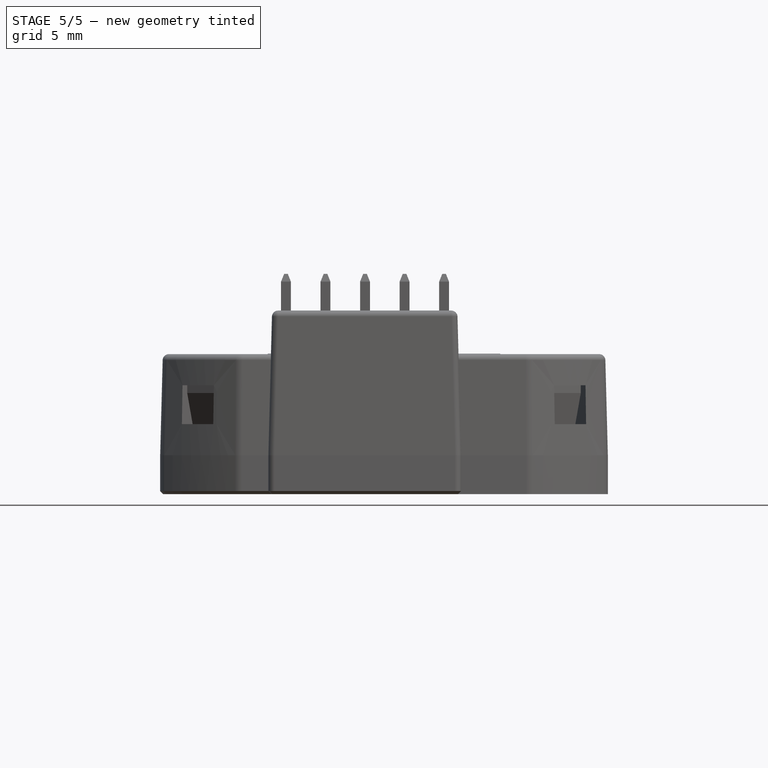
[diagram: stage 5 of 5 — front view after this stage's code; geometry added in this stage tinted green]
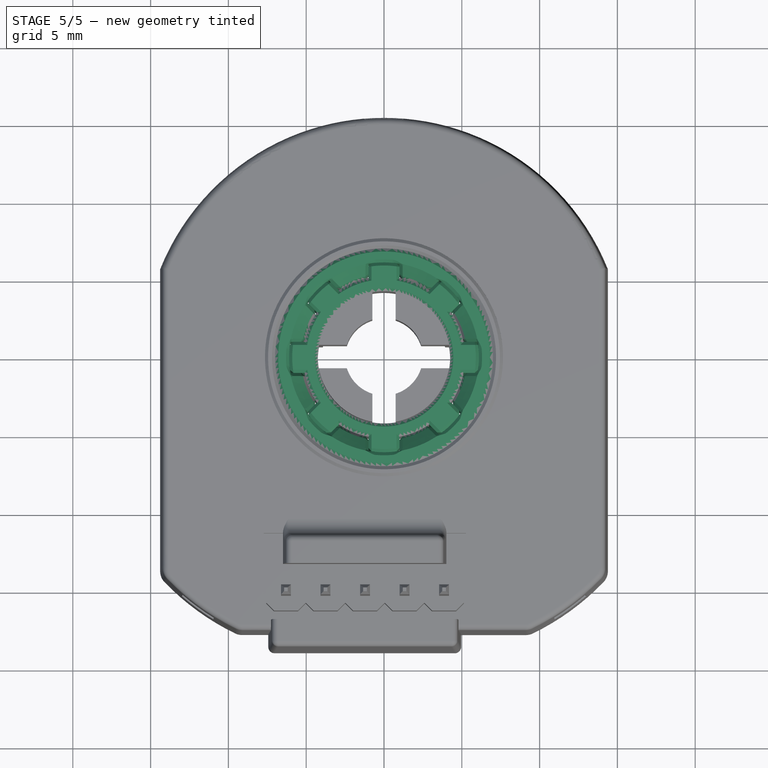
[diagram: stage 5 of 5 — top view after this stage's code; geometry added in this stage tinted green]
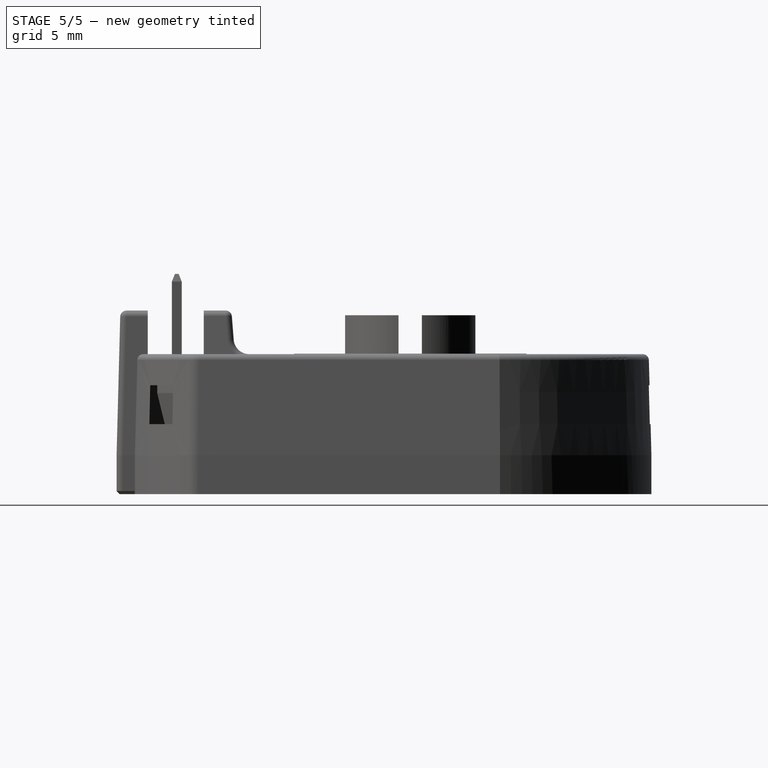
[diagram: stage 5 of 5 — right view after this stage's code; geometry added in this stage tinted green]
FEATURE [Sketcher::SketchObject] Sketch012
  FullyConstrained = true
  MapMode = 5
  Support = -> [XY_Plane002]
  sketch-geometry (2):
    g0: Circle CenterX=0 CenterY=0 CenterZ=0 NormalX=0 NormalY=0 NormalZ=1 AngleXU=0 Radius=7
    g1: Circle CenterX=0 CenterY=0 CenterZ=0 NormalX=0 NormalY=0 NormalZ=1 AngleXU=0 Radius=5.2
  constraints (4):
    c: Coincident(g0,g-1)
    c: Diameter(g0) = 14
    c: Coincident(g1,g0)
    c: Diameter(g1) = 10.4
FEATURE [PartDesign::Pad] Pad007
  Direction = (0,0,1)
  Length = 9
  Length2 = 10
  Profile = -> Sketch012
  ReferenceAxis = -> Sketch012 [N_Axis]
  Type = 0
FEATURE [PartDesign::Chamfer] Chamfer001
  Angle = 45
  Base = -> Pad007 [Edge6,Edge5]
  BaseFeature = -> Pad007
  ChamferType = 0
  FlipDirection = false
  Size = 0.9
  Size2 = 1
  SupportTransform = false
  UseAllEdges = false
FEATURE [PartDesign::Body] Body002
  Group = -> [Sketch012,Pad007,Chamfer001]
  Origin = -> Origin002
  Placement = pos=(0,0,-2.5) rot=(0,0,1;0rad)
  Tip = -> Chamfer001
FEATURE [Sketcher::SketchObject] Sketch013
  FullyConstrained = true
  MapMode = 5
  Support = -> [XY_Plane003]
  sketch-geometry (4):
    g0: ArcOfCircle CenterX=0 CenterY=0 CenterZ=0 NormalX=0 NormalY=0 NormalZ=1 AngleXU=0 Radius=6.1 StartAngle=1.40612 EndAngle=1.73547
    g1: LineSegment StartX=-1 StartY=6.01747 StartZ=0 EndX=-1 EndY=4.51747 EndZ=0
    g2: LineSegment StartX=-1 StartY=4.51747 StartZ=0 EndX=1 EndY=4.51747 EndZ=0
    g3: LineSegment StartX=1 StartY=4.51747 StartZ=0 EndX=1 EndY=6.01747 EndZ=0
  constraints (12):
    c: Coincident(g0,g-1)
    c: Horizontal(g0,g0)
    c: Radius(g0) = 6.1
    c: Coincident(g1,g0)
    c: Vertical(g1)
    c: Coincident(g2,g1)
    c: Horizontal(g2)
    c: Coincident(g3,g2)
    c: Coincident(g3,g0)
    c: Vertical(g3)
    c: DistanceX(g2,g2) = 2
    c: DistanceY(g1,g1) = 1.5
FEATURE [PartDesign::Pad] Pad008
  Direction = (0,0,1)
  Length = 10
  Length2 = 10
  Profile = -> Sketch013
  ReferenceAxis = -> Sketch013 [N_Axis]
  Type = 0
FEATURE [PartDesign::Body] Body003
  Group = -> [Sketch013,Pad008]
  Origin = -> Origin003
  Placement = pos=(0,0,-3) rot=(0,0,1;0rad)
  Tip = -> Pad008
FEATURE [Part::FeaturePython] Array  # Draft array (typed FeaturePython)
  AlwaysSyncPlacement = false
  Angle = 360
  ArrayType = 1
  Axis = (0,0,1)
  Base = -> Body003
  Center = (0,0,0)
  Count = 8
  ExpandArray = false
  Fuse = false
  IntervalAxis = (0,0,0)
  IntervalX = (50,0,0)
  IntervalY = (0,50,0)
  IntervalZ = (0,0,50)
  NumberCircles = 3
  NumberPolar = 8
  NumberX = 2
  NumberY = 2
  NumberZ = 1
  PlacementList = 8 placements: [(0,0,-3),(0,0,-3),(0,0,-3),(0,0,-3),(0,0,-3),(0,0,-3),(0,0,-3),(0,0,-3)]
  RadialDistance = 50
  ScaleList = (8) [(1,1,1),(1,1,1),(1,1,1),(1,1,1),(1,1,1),(1,1,1),(1,1,1),(1,1,1)]
  Symmetry = 1
  TangentialDistance = 25
FEATURE [Part::Cut] Cut
  Base = -> Body002
  Tool = -> Array
FEATURE [Part::Chamfer] Chamfer002
  Base = -> Cut
  Edges = 83 edges r=0.2: [Edge1,Edge2,Edge3,Edge4,Edge5,Edge7,Edge9,Edge10,Edge13,Edge14,Edge16,Edge18,Edge22,Edge24,Edge26,Edge28,Edge29,Edge31,Edge32,Edge34,Edge36,Edge38,Edge40,Edge42,Edge44,Edge46,Edge47,Edge49,Edge50,Edge51,Edge54,Edge55,Edge56,Edge59,Edge60,Edge61,Edge64,Edge65,Edge66,Edge69,Edge70,Edge71,Edge74,+40 more]
FEATURE [Sketcher::SketchObject] Sketch015
  FullyConstrained = true
  MapMode = 5
  Support = -> [XY_Plane005]
  sketch-geometry (4):
    g0: LineSegment StartX=1 StartY=6.01747 StartZ=0 EndX=1 EndY=4.76747 EndZ=0
    g1: LineSegment StartX=1 StartY=4.76747 StartZ=0 EndX=-1 EndY=4.76747 EndZ=0
    g2: LineSegment StartX=-1 StartY=4.76747 StartZ=0 EndX=-1 EndY=6.01747 EndZ=0
    g3: ArcOfCircle CenterX=0 CenterY=0 CenterZ=0 NormalX=0 NormalY=0 NormalZ=1 AngleXU=0 Radius=6.1 StartAngle=1.40612 EndAngle=1.73547
  constraints (12):
    c: Coincident(g0,g1)
    c: Coincident(g1,g2)
    c: Horizontal(g1)
    c: Vertical(g0)
    c: Vertical(g2)
    c: Coincident(g3,g-1)
    c: Coincident(g3,g2)
    c: Coincident(g3,g0)
    c: Equal(g0,g2)
    c: DistanceX(g1,g1) = 2
    c: Radius(g3) = 6.1
    c: DistanceY(g2,g2) = 1.25
FEATURE [PartDesign::Pad] Pad010
  Direction = (0,0,1)
  Length = 9
  Length2 = 10
  Profile = -> Sketch015
  ReferenceAxis = -> Sketch015 [N_Axis]
  Type = 0
FEATURE [PartDesign::Body] Body005
  Group = -> [Sketch015,Pad010]
  Origin = -> Origin005
  Placement = pos=(0,0,-3) rot=(0,0,1;0rad)
  Tip = -> Pad010
FEATURE [Part::FeaturePython] Array001  # Draft array (typed FeaturePython)
  AlwaysSyncPlacement = false
  Angle = 360
  ArrayType = 1
  Axis = (0,0,1)
  Base = -> Body005
  Center = (0,0,0)
  Count = 8
  ExpandArray = false
  Fuse = false
  IntervalAxis = (0,0,0)
  IntervalX = (50,0,0)
  IntervalY = (0,50,0)
  IntervalZ = (0,0,50)
  NumberCircles = 3
  NumberPolar = 8
  NumberX = 2
  NumberY = 2
  NumberZ = 1
  PlacementList = 8 placements: [(0,0,-3),(0,0,-3),(0,0,-3),(0,0,-3),(0,0,-3),(0,0,-3),(0,0,-3),(0,0,-3)]
  RadialDistance = 50
  ScaleList = (8) [(1,1,1),(1,1,1),(1,1,1),(1,1,1),(1,1,1),(1,1,1),(1,1,1),(1,1,1)]
  Symmetry = 1
  TangentialDistance = 25
FEATURE [PartDesign::Body] Body004
  Group = -> [Sketch014,Pad009,Sketch017,Pocket005]
  Origin = -> Origin004
  Placement = pos=(0,0,-3) rot=(0,0,1;0rad)
  Tip = -> Pocket005
FEATURE [Part::MultiFuse] Fusion
  Refine = true
  Shapes = -> [Body004,Array001]
FEATURE [Part::Chamfer] Chamfer004
  Base = -> Fusion
  Edges = 83 edges r=0.2: [Edge1,Edge3,Edge5,Edge6,Edge7,Edge8,Edge9,Edge10,Edge11,Edge12,Edge13,Edge14,Edge16,Edge18,Edge19,Edge20,Edge21,Edge22,Edge23,Edge24,Edge25,Edge26,Edge28,Edge30,Edge31,Edge32,Edge33,Edge34,Edge35,Edge36,Edge37,Edge39,Edge41,Edge42,Edge43,Edge44,Edge45,Edge46,Edge47,Edge48,Edge49,Edge51,Edge53,+40 more]
  Placement = pos=(0,0,0.5) rot=(0,0,1;0rad)
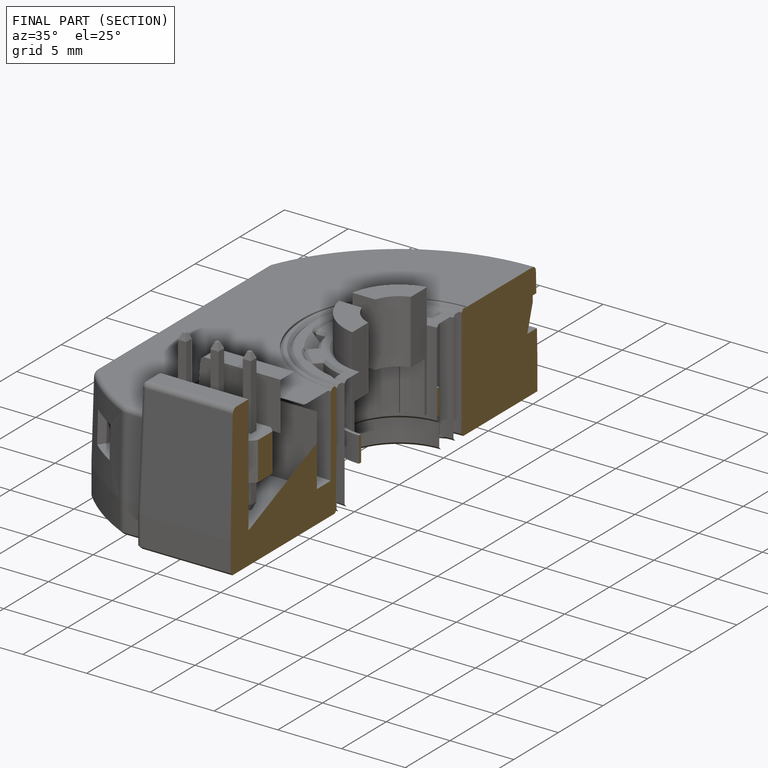
[diagram: finished part — half-section view (interior)]
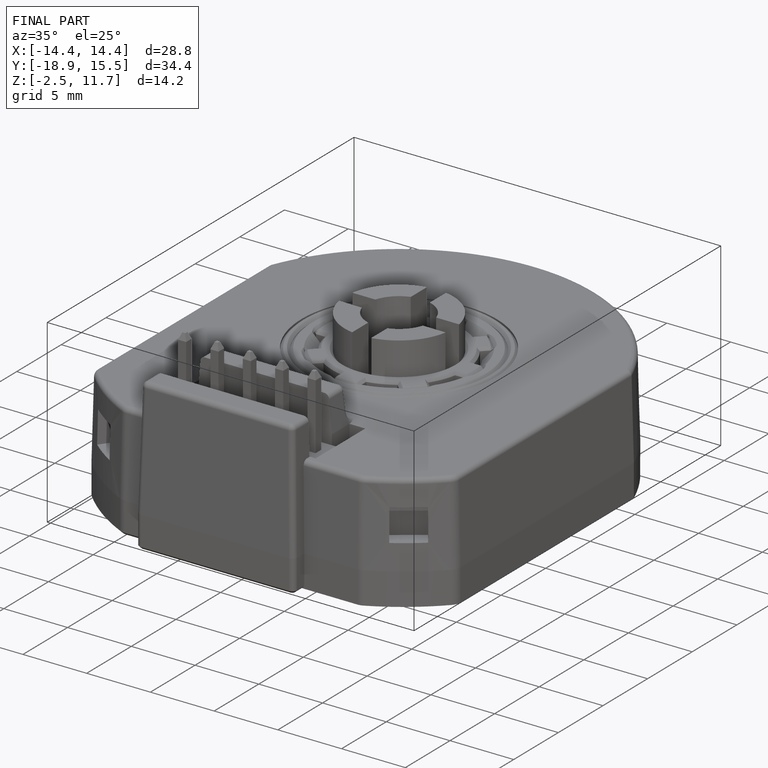
[diagram: finished part — iso view with bounding-box wireframe]
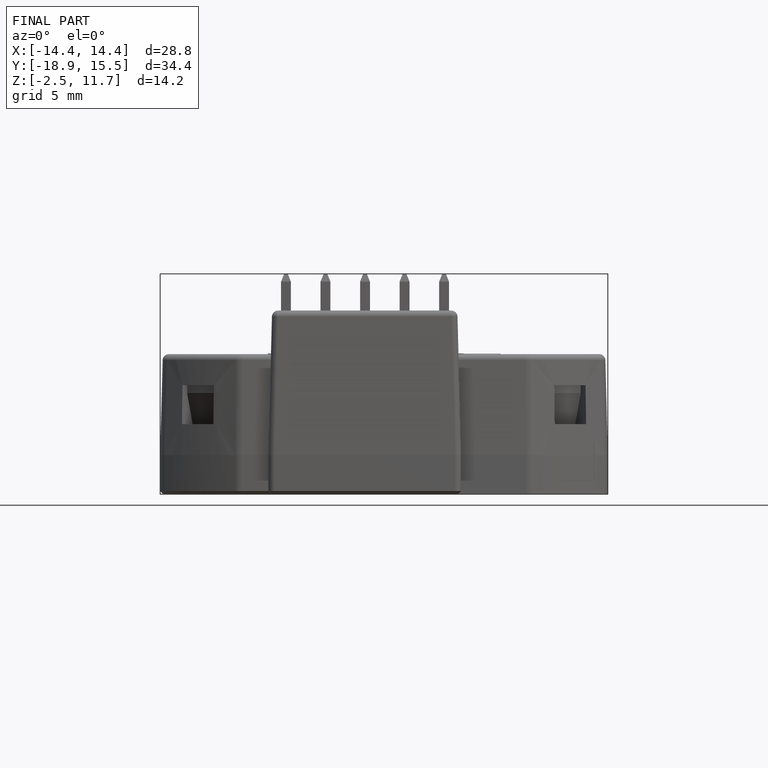
[diagram: finished part — front view with bounding-box wireframe]
